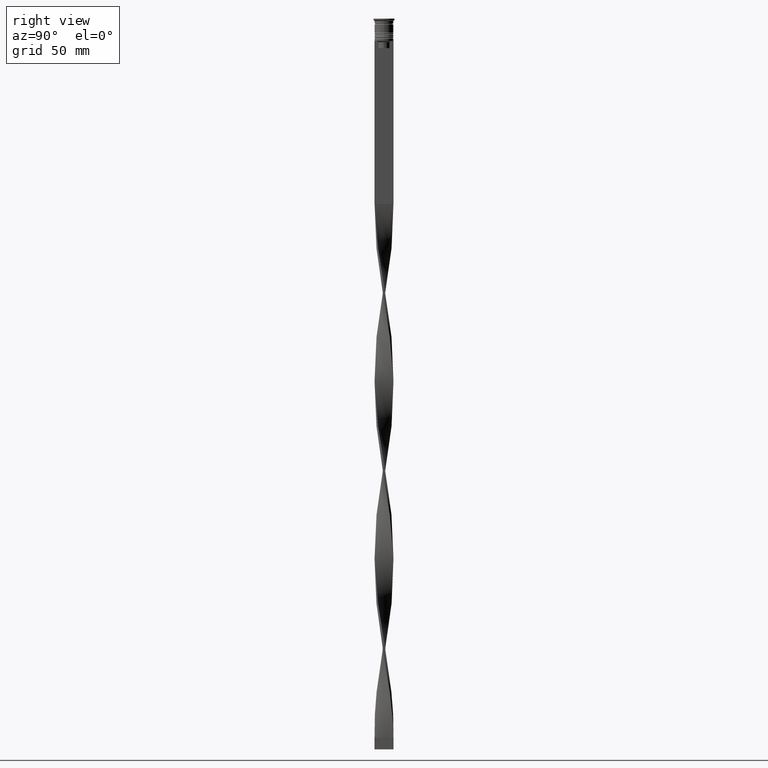
[diagram: clean part render]
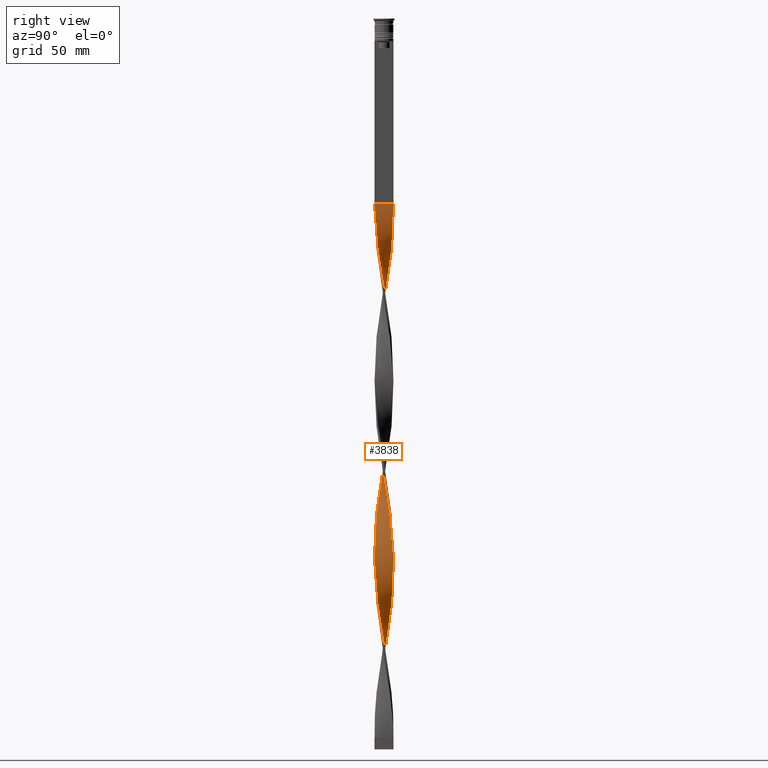
[diagram: same view with one face highlighted and labeled with its STEP entity id]
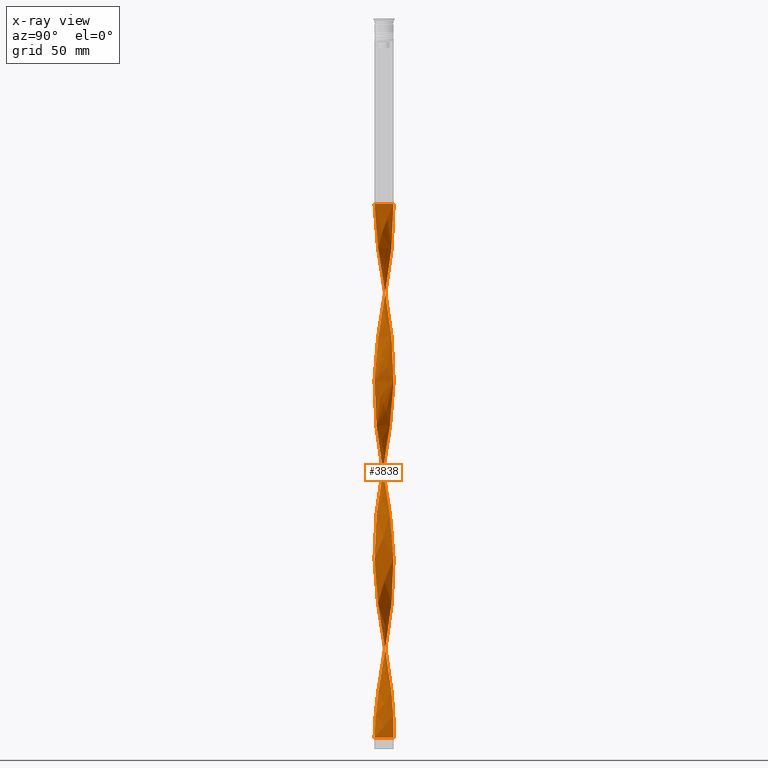
[diagram: x-ray of the same camera — body ghosted, the highlighted face saturated]
A machine part, right view. The second image highlights one B-rep face of the part: STEP entity #3838.
The next image is the same camera in x-ray: the body ghosted, the highlighted face saturated — about 0% of this face is hidden behind the body in this view.
In plain terms, the highlighted face is a freeform B-spline surface patch.
Its self-contained STEP definition (entity closure, byte-faithful):
#13 = CARTESIAN_POINT ( 'NONE',  ( 3.291162296146090682, 2.351558211267345211, -278.7280701754385746 ) ) ;
#29 = B_SPLINE_CURVE_WITH_KNOTS ( 'NONE', 3,
 ( #3873, #1362, #968, #350 ),
 .UNSPECIFIED., .F., .F.,
 ( 4, 4 ),
 ( 0.000000000000000000, 1.000000000000000000 ),
 .UNSPECIFIED. ) ;
#34 = CARTESIAN_POINT ( 'NONE',  ( -3.945048299290513150, -0.8286096283926643880, -193.4824561403508767 ) ) ;
#57 = CARTESIAN_POINT ( 'NONE',  ( -3.768740862115095513, 1.469070316484698990, -179.6052631578947398 ) ) ;
#77 = CARTESIAN_POINT ( 'NONE',  ( 3.876387747932443784, -1.155505650454258459, -187.5350877192982750 ) ) ;
#84 = CARTESIAN_POINT ( 'NONE',  ( 1.775272850193347685, 3.634553836156354745, -290.6228070175438347 ) ) ;
#88 = CARTESIAN_POINT ( 'NONE',  ( -4.013708850648581183, -0.5017136063310719818, -191.4999999999999716 ) ) ;
#94 = LINE ( 'NONE', #3517, #1070 ) ;
#95 = CARTESIAN_POINT ( 'NONE',  ( -4.027627644762845627, 0.1679748646140058199, -118.1491228070175481 ) ) ;
#97 = CARTESIAN_POINT ( 'NONE',  ( -2.062280596060474647, 3.463668393930408484, -94.35964912280701355 ) ) ;
#106 = CARTESIAN_POINT ( 'NONE',  ( -2.604254856879658409, -3.076988241839528015, -209.3421052631578902 ) ) ;
#115 =( BOUNDED_CURVE ( )  B_SPLINE_CURVE ( 2, ( #1717, #1119, #477, #2079, #3308, #2064, #2675, #2000, #3266, #2951, #1737, #2696, #3970, #2370, #1754, #492, #210, #3342, #3325, #1142, #3890, #1691, #2391, #3035, #1062, #3984, #1822, #2735, #549, #1791, #2408, #1460, #1231, #3130, #1212, #3069, #588, #3420, #2717, #3714, #864, #2092, #3442, #1538, #269, #3671, #1157, #605, #4022, #2449, #227, #1866, #1519, #3400, #1494, #905, #3733, #1849, #1173, #565, #2423, #3054, #2800, #246, #2178, #2752, #841, #3090, #3114, #2114, #1194, #4060, #3363, #2132, #3998, #2489, #885, #3752, #3693, #2781, #3381, #1805, #4041, #288, #532, #1477, #927, #2470, #2151, #2911, #3796, #692, #385, #1973, #1578, #965, #3174, #1930, #4079, #344, #3217, #13, #2216, #1887, #3148, #2840, #1639, #84, #2243, #2546, #1016, #643, #2820, #713, #3480 ),
 .UNSPECIFIED., .F., .T. ) 
 B_SPLINE_CURVE_WITH_KNOTS ( ( 3, 2, 2, 2, 2, 2, 2, 2, 2, 2, 2, 2, 2, 2, 2, 2, 2, 2, 2, 2, 2, 2, 2, 2, 2, 2, 2, 2, 2, 2, 2, 2, 2, 2, 2, 2, 2, 2, 2, 2, 2, 2, 2, 2, 2, 2, 2, 2, 2, 2, 2, 2, 2, 2, 2, 2, 2, 3 ),
 ( 0.000000000000000000, 0.01315789473684210453, 0.02631578947368420907, 0.03947368421052631360, 0.05263157894736841813, 0.06578947368421052266, 0.07894736842105262720, 0.09210526315789473173, 0.1052631578947368363, 0.1184210526315789408, 0.1315789473684210453, 0.1447368421052631637, 0.1578947368421052544, 0.1710526315789473728, 0.1842105263157894635, 0.1973684210526315541, 0.2105263157894736725, 0.2236842105263157909, 0.2368421052631578816, 0.2500000000000000000, 0.2631578947368420907, 0.2763157894736842368, 0.2894736842105263275, 0.3026315789473684181, 0.3157894736842105088, 0.3289473684210526550, 0.3421052631578947456, 0.3552631578947368918, 0.3684210526315789269, 0.3815789473684210731, 0.3947368421052631082, 0.4078947368421052544, 0.4210526315789473450, 0.4342105263157895467, 0.4473684210526315819, 0.4605263157894736725, 0.4736842105263157632, 0.4868421052631579093, 0.5000000000000000000, 0.5131578947368421462, 0.5263157894736841813, 0.5394736842105263275, 0.5526315789473684736, 0.5657894736842105088, 0.5789473684210526550, 0.5921052631578946901, 0.6052631578947368363, 0.6184210526315789824, 0.6315789473684210176, 0.6447368421052631637, 0.6578947368421053099, 0.6710526315789473450, 0.6842105263157894912, 0.6973684210526315264, 0.7105263157894737835, 0.7236842105263158187, 0.7368421052631578538, 0.7500000000000000000 ),
 .UNSPECIFIED. ) 
 CURVE ( )  GEOMETRIC_REPRESENTATION_ITEM ( )  RATIONAL_B_SPLINE_CURVE ( ( 1.000000000000000000, 0.9965844930066698470, 1.000000000000000000, 0.9965844930066698470, 1.000000000000000000, 0.9965844930066698470, 1.000000000000000000, 0.9965844930066698470, 1.000000000000000000, 0.9965844930066698470, 1.000000000000000000, 0.9965844930066698470, 1.000000000000000000, 0.9965844930066698470, 1.000000000000000000, 0.9965844930066698470, 1.000000000000000000, 0.9965844930066698470, 1.000000000000000000, 0.9965844930066698470, 1.000000000000000000, 0.9965844930066698470, 1.000000000000000000, 0.9965844930066698470, 1.000000000000000000, 0.9965844930066698470, 1.000000000000000000, 0.9965844930066698470, 1.000000000000000000, 0.9965844930066698470, 1.000000000000000000, 0.9965844930066698470, 1.000000000000000000, 0.9965844930066698470, 1.000000000000000000, 0.9965844930066698470, 1.000000000000000000, 0.9965844930066698470, 1.000000000000000000, 0.9965844930066698470, 1.000000000000000000, 0.9965844930066698470, 1.000000000000000000, 0.9965844930066698470, 1.000000000000000000, 0.9965844930066698470, 1.000000000000000000, 0.9965844930066698470, 1.000000000000000000, 0.9965844930066698470, 1.000000000000000000, 0.9965844930066698470, 1.000000000000000000, 0.9965844930066698470, 1.000000000000000000, 0.9965844930066698470, 1.000000000000000000, 0.9965844930066698470, 1.000000000000000000, 0.9965844930066698470, 1.000000000000000000, 0.9965844930066698470, 1.000000000000000000, 0.9965844930066698470, 1.000000000000000000, 0.9965844930066698470, 1.000000000000000000, 0.9965844930066698470, 1.000000000000000000, 0.9965844930066698470, 1.000000000000000000, 0.9965844930066698470, 1.000000000000000000, 0.9965844930066698470, 1.000000000000000000, 0.9965844930066698470, 1.000000000000000000, 0.9965844930066698470, 1.000000000000000000, 0.9965844930066698470, 1.000000000000000000, 0.9965844930066698470, 1.000000000000000000, 0.9965844930066698470, 1.000000000000000000, 0.9965844930066698470, 1.000000000000000000, 0.9965844930066698470, 1.000000000000000000, 0.9965844930066698470, 1.000000000000000000, 0.9965844930066698470, 1.000000000000000000, 0.9965844930066698470, 1.000000000000000000, 0.9965844930066698470, 1.000000000000000000, 0.9965844930066698470, 1.000000000000000000, 0.9965844930066698470, 1.000000000000000000, 0.9965844930066698470, 1.000000000000000000, 0.9965844930066698470, 1.000000000000000000, 0.9965844930066698470, 1.000000000000000000, 0.9965844930066698470, 1.000000000000000000, 0.9965844930066698470, 1.000000000000000000, 0.9965844930066698470, 1.000000000000000000, 0.9965844930066698470, 1.000000000000000000 ) ) 
 REPRESENTATION_ITEM ( '' )  );
#117 = CARTESIAN_POINT ( 'NONE',  ( 3.959141175778333022, 0.8287197540840007814, -199.4298245614035068 ) ) ;
#128 = CARTESIAN_POINT ( 'NONE',  ( 4.000343807327721102, -0.4972418155935317552, -260.8859649122807127 ) ) ;
#140 = CARTESIAN_POINT ( 'NONE',  ( 3.863941018946714490, 1.148895035284349442, -201.4122807017543835 ) ) ;
#144 = CARTESIAN_POINT ( 'NONE',  ( -1.464052696545049548, 3.755868701344493132, -90.39473684210526017 ) ) ;
#152 = CARTESIAN_POINT ( 'NONE',  ( 0.8258892559684172241, 3.945618701404880024, -296.5701754385964932 ) ) ;
#162 = CARTESIAN_POINT ( 'NONE',  ( -0.1685505501969342679, -4.041431181225382474, -155.8157894736842195 ) ) ;
#164 = CARTESIAN_POINT ( 'NONE',  ( -1.771706497669051972, -3.620919232200196625, -145.9035087719298076 ) ) ;
#169 = CARTESIAN_POINT ( 'NONE',  ( 3.087533734903234350, -2.613180192100606813, -247.0087719298245190 ) ) ;
#178 = CARTESIAN_POINT ( 'NONE',  ( -2.604254856879656188, 3.076988241839530236, -248.9912280701754241 ) ) ;
#179 = CARTESIAN_POINT ( 'NONE',  ( -0.4989459690400814273, 4.014053836277128973, -84.44736842105264429 ) ) ;
#196 = CARTESIAN_POINT ( 'NONE',  ( -3.959141175778332133, -0.8287197540840011145, -274.7631578947368780 ) ) ;
#199 = CARTESIAN_POINT ( 'NONE',  ( 3.959141175778333022, 0.8287197540840007814, -199.4298245614035068 ) ) ;
#210 = CARTESIAN_POINT ( 'NONE',  ( 4.000343807327721102, -0.4972418155935317552, -110.2192982456140413 ) ) ;
#217 = CARTESIAN_POINT ( 'NONE',  ( 1.471668575845526350, -3.767727018166428632, -84.44736842105264429 ) ) ;
#219 = CARTESIAN_POINT ( 'NONE',  ( -1.152832542896751189, 3.877183566532631520, -239.0789473684210407 ) ) ;
#227 = CARTESIAN_POINT ( 'NONE',  ( -3.622139992111327533, 1.769209393358443627, -177.6228070175438347 ) ) ;
#234 = CARTESIAN_POINT ( 'NONE',  ( 0.1685505501969329079, 4.041431181225382474, -231.1491228070175623 ) ) ;
#236 = CARTESIAN_POINT ( 'NONE',  ( 3.863941018946714490, 1.148895035284349442, -201.4122807017543835 ) ) ;
#246 = CARTESIAN_POINT ( 'NONE',  ( -3.291162296146092014, -2.351558211267342990, -203.3947368421052602 ) ) ;
#252 = CARTESIAN_POINT ( 'NONE',  ( -4.013708850648581183, 0.5017136063310728700, -266.8333333333333712 ) ) ;
#255 = CARTESIAN_POINT ( 'NONE',  ( 0.8314494498030690073, 3.958568818774615750, -227.1842105263158089 ) ) ;
#269 = CARTESIAN_POINT ( 'NONE',  ( -2.343526447751538289, 3.279921308307419903, -165.7280701754386030 ) ) ;
#278 = CARTESIAN_POINT ( 'NONE',  ( 0.4989459690400829261, 4.014053836277128973, -147.8859649122807127 ) ) ;
#280 = CARTESIAN_POINT ( 'NONE',  ( -4.041546438877109182, -0.1657638771030611746, -270.7982456140350678 ) ) ;
#288 = CARTESIAN_POINT ( 'NONE',  ( 2.615308476010500982, -3.085731170380873412, -243.0438596491228509 ) ) ;
#344 = CARTESIAN_POINT ( 'NONE',  ( 3.633328892441399116, 1.777778512611467576, -274.7631578947368780 ) ) ;
#349 = CARTESIAN_POINT ( 'NONE',  ( 3.633328892441398672, 1.777778512611467576, -124.0964912280701640 ) ) ;
#350 = CARTESIAN_POINT ( 'NONE',  ( -0.4999999999999994449, 4.000000000000000000, -304.5000000000000000 ) ) ;
#368 = CARTESIAN_POINT ( 'NONE',  ( -2.071744419492574707, 3.474111446233965950, -163.7456140350876979 ) ) ;
#379 = CARTESIAN_POINT ( 'NONE',  ( -3.281536428505397396, -2.341264331166397206, -134.0087719298245759 ) ) ;
#385 = CARTESIAN_POINT ( 'NONE',  ( 4.000343807327721102, -0.4972418155935317552, -260.8859649122807127 ) ) ;
#390 = CARTESIAN_POINT ( 'NONE',  ( 0.8314494498030671199, -3.958568818774615750, -231.1491228070175623 ) ) ;
#409 = CARTESIAN_POINT ( 'NONE',  ( -1.771706497669051972, -3.620919232200196625, -145.9035087719298076 ) ) ;
#416 = CARTESIAN_POINT ( 'NONE',  ( 0.1651977094215750508, 4.027742508751256167, -149.8684210526315894 ) ) ;
#425 = CARTESIAN_POINT ( 'NONE',  ( -2.062280596060474647, 3.463668393930408484, -94.35964912280701355 ) ) ;
#434 = CARTESIAN_POINT ( 'NONE',  ( 0.5000000000000000000, 4.000000000000000000, -78.50000000000000000 ) ) ;
#437 = CARTESIAN_POINT ( 'NONE',  ( 3.633328892441398672, 1.777778512611467576, -274.7631578947368780 ) ) ;
#445 = CARTESIAN_POINT ( 'NONE',  ( 2.615308476010501870, 3.085731170380873412, -215.2894736842105488 ) ) ;
#447 = CARTESIAN_POINT ( 'NONE',  ( -2.615308476010500982, -3.085731170380873412, -139.9561403508772059 ) ) ;
#463 = CARTESIAN_POINT ( 'NONE',  ( -2.615308476010501426, -3.085731170380873412, -139.9561403508772059 ) ) ;
#467 = CARTESIAN_POINT ( 'NONE',  ( -2.343526447751539177, -3.279921308307419459, -141.9385964912280826 ) ) ;
#473 = VERTEX_POINT ( 'NONE', #1696 ) ;
#474 = CARTESIAN_POINT ( 'NONE',  ( 0.4989459690400829261, 4.014053836277128973, -298.5526315789473983 ) ) ;
#477 = CARTESIAN_POINT ( 'NONE',  ( 1.151559012824296735, -3.863147918470522413, -82.46491228070175339 ) ) ;
#482 = CARTESIAN_POINT ( 'NONE',  ( -0.5000000000000005551, -4.000000000000000000, -304.5000000000000000 ) ) ;
#485 = CARTESIAN_POINT ( 'NONE',  ( -0.4989459690400814829, 4.014053836277128973, -84.44736842105263008 ) ) ;
#491 = CARTESIAN_POINT ( 'NONE',  ( 1.464052696545050436, 3.755868701344492688, -292.6052631578947398 ) ) ;
#492 = CARTESIAN_POINT ( 'NONE',  ( 3.959141175778332133, -0.8287197540840016696, -108.2368421052631646 ) ) ;
#499 = CARTESIAN_POINT ( 'NONE',  ( 1.151559012824296735, -3.863147918470522413, -82.46491228070175339 ) ) ;
#502 = CARTESIAN_POINT ( 'NONE',  ( -0.1651977094215744957, 4.027742508751256167, -233.1315789473684106 ) ) ;
#516 = CARTESIAN_POINT ( 'NONE',  ( -4.027627644762845627, 0.1679748646140058199, -268.8157894736842195 ) ) ;
#520 = CARTESIAN_POINT ( 'NONE',  ( 2.349288341927599610, -3.292782951704462668, -171.6754385964912331 ) ) ;
#530 =( BOUNDED_CURVE ( )  B_SPLINE_CURVE ( 2, ( #2943, #2344, #2964, #485, #1053, #3297, #144, #3544, #97, #1352, #3905, #3862, #1033, #2649, #2990, #2281, #2606, #3881, #3924, #1397, #2030, #1729, #1373, #1080, #709, #1098, #3591, #1969, #760, #3277, #3237, #447, #467, #3609, #164, #1204, #819, #4008, #3977, #2745, #3992, #874, #1469, #540, #1132, #853, #1150, #520, #1784, #2122, #557, #3389, #1813, #836, #1184, #1797, #2142, #2400, #3080, #3062, #2382, #199, #236, #2439, #1166, #3957, #1487, #576, #1836, #2417, #3350, #2073, #3648, #3666, #3335, #255, #3705, #3044, #502, #1507, #2086, #219, #2725, #2770, #3682, #2107, #1451, #3372, #1764, #3025, #4033, #2460, #3723, #894, #2708, #3104, #3410, #280, #2684, #1528, #3516, #1920, #1238, #680, #659, #2791, #2810, #4067, #3183, #2188, #631, #1546, #3472, #2500, #3121 ),
 .UNSPECIFIED., .F., .T. ) 
 B_SPLINE_CURVE_WITH_KNOTS ( ( 3, 2, 2, 2, 2, 2, 2, 2, 2, 2, 2, 2, 2, 2, 2, 2, 2, 2, 2, 2, 2, 2, 2, 2, 2, 2, 2, 2, 2, 2, 2, 2, 2, 2, 2, 2, 2, 2, 2, 2, 2, 2, 2, 2, 2, 2, 2, 2, 2, 2, 2, 2, 2, 2, 2, 2, 2, 3 ),
 ( 0.000000000000000000, 0.01315789473684210453, 0.02631578947368420907, 0.03947368421052631360, 0.05263157894736841813, 0.06578947368421052266, 0.07894736842105262720, 0.09210526315789473173, 0.1052631578947368363, 0.1184210526315789408, 0.1315789473684210453, 0.1447368421052631637, 0.1578947368421052544, 0.1710526315789473728, 0.1842105263157894635, 0.1973684210526315541, 0.2105263157894736725, 0.2236842105263157909, 0.2368421052631578816, 0.2500000000000000000, 0.2631578947368420907, 0.2763157894736842368, 0.2894736842105263275, 0.3026315789473684181, 0.3157894736842105088, 0.3289473684210526550, 0.3421052631578947456, 0.3552631578947368918, 0.3684210526315789269, 0.3815789473684210731, 0.3947368421052631082, 0.4078947368421052544, 0.4210526315789473450, 0.4342105263157895467, 0.4473684210526315819, 0.4605263157894736725, 0.4736842105263157632, 0.4868421052631579093, 0.5000000000000000000, 0.5131578947368421462, 0.5263157894736841813, 0.5394736842105263275, 0.5526315789473684736, 0.5657894736842105088, 0.5789473684210526550, 0.5921052631578946901, 0.6052631578947368363, 0.6184210526315789824, 0.6315789473684210176, 0.6447368421052631637, 0.6578947368421053099, 0.6710526315789473450, 0.6842105263157894912, 0.6973684210526315264, 0.7105263157894737835, 0.7236842105263158187, 0.7368421052631578538, 0.7500000000000000000 ),
 .UNSPECIFIED. ) 
 CURVE ( )  GEOMETRIC_REPRESENTATION_ITEM ( )  RATIONAL_B_SPLINE_CURVE ( ( 1.000000000000000000, 0.9965844930066698470, 1.000000000000000000, 0.9965844930066698470, 1.000000000000000000, 0.9965844930066698470, 1.000000000000000000, 0.9965844930066698470, 1.000000000000000000, 0.9965844930066698470, 1.000000000000000000, 0.9965844930066698470, 1.000000000000000000, 0.9965844930066698470, 1.000000000000000000, 0.9965844930066698470, 1.000000000000000000, 0.9965844930066698470, 1.000000000000000000, 0.9965844930066698470, 1.000000000000000000, 0.9965844930066698470, 1.000000000000000000, 0.9965844930066698470, 1.000000000000000000, 0.9965844930066698470, 1.000000000000000000, 0.9965844930066698470, 1.000000000000000000, 0.9965844930066698470, 1.000000000000000000, 0.9965844930066698470, 1.000000000000000000, 0.9965844930066698470, 1.000000000000000000, 0.9965844930066698470, 1.000000000000000000, 0.9965844930066698470, 1.000000000000000000, 0.9965844930066698470, 1.000000000000000000, 0.9965844930066698470, 1.000000000000000000, 0.9965844930066698470, 1.000000000000000000, 0.9965844930066698470, 1.000000000000000000, 0.9965844930066698470, 1.000000000000000000, 0.9965844930066698470, 1.000000000000000000, 0.9965844930066698470, 1.000000000000000000, 0.9965844930066698470, 1.000000000000000000, 0.9965844930066698470, 1.000000000000000000, 0.9965844930066698470, 1.000000000000000000, 0.9965844930066698470, 1.000000000000000000, 0.9965844930066698470, 1.000000000000000000, 0.9965844930066698470, 1.000000000000000000, 0.9965844930066698470, 1.000000000000000000, 0.9965844930066698470, 1.000000000000000000, 0.9965844930066698470, 1.000000000000000000, 0.9965844930066698470, 1.000000000000000000, 0.9965844930066698470, 1.000000000000000000, 0.9965844930066698470, 1.000000000000000000, 0.9965844930066698470, 1.000000000000000000, 0.9965844930066698470, 1.000000000000000000, 0.9965844930066698470, 1.000000000000000000, 0.9965844930066698470, 1.000000000000000000, 0.9965844930066698470, 1.000000000000000000, 0.9965844930066698470, 1.000000000000000000, 0.9965844930066698470, 1.000000000000000000, 0.9965844930066698470, 1.000000000000000000, 0.9965844930066698470, 1.000000000000000000, 0.9965844930066698470, 1.000000000000000000, 0.9965844930066698470, 1.000000000000000000, 0.9965844930066698470, 1.000000000000000000, 0.9965844930066698470, 1.000000000000000000, 0.9965844930066698470, 1.000000000000000000, 0.9965844930066698470, 1.000000000000000000, 0.9965844930066698470, 1.000000000000000000, 0.9965844930066698470, 1.000000000000000000, 0.9965844930066698470, 1.000000000000000000, 0.9965844930066698470, 1.000000000000000000 ) ) 
 REPRESENTATION_ITEM ( '' )  );
#532 = CARTESIAN_POINT ( 'NONE',  ( 2.851421105456868332, -2.849455681240740557, -245.0263157894736992 ) ) ;
#538 = CARTESIAN_POINT ( 'NONE',  ( 3.863941018946714490, -1.148895035284349442, -106.2543859649122879 ) ) ;
#540 = CARTESIAN_POINT ( 'NONE',  ( 1.152832542896750301, -3.877183566532631964, -163.7456140350876979 ) ) ;
#549 = CARTESIAN_POINT ( 'NONE',  ( 2.604254856879656632, 3.076988241839529348, -134.0087719298245759 ) ) ;
#555 = CARTESIAN_POINT ( 'NONE',  ( 3.087533734903234350, -2.613180192100606813, -96.34210526315787604 ) ) ;
#557 = CARTESIAN_POINT ( 'NONE',  ( 3.075191833988900836, -2.606375871620972173, -177.6228070175438347 ) ) ;
#565 = CARTESIAN_POINT ( 'NONE',  ( -3.876387747932445560, -1.155505650454253352, -195.4649122807017534 ) ) ;
#573 = CARTESIAN_POINT ( 'NONE',  ( -1.152832542896753409, -3.877183566532631520, -219.2543859649122737 ) ) ;
#576 = CARTESIAN_POINT ( 'NONE',  ( 3.087533734903235683, 2.613180192100605037, -211.3245614035087669 ) ) ;
#588 = CARTESIAN_POINT ( 'NONE',  ( 0.1651977094215750508, 4.027742508751256167, -149.8684210526315894 ) ) ;
#595 = CARTESIAN_POINT ( 'NONE',  ( -4.041546438877107406, 0.1657638771030640612, -187.5350877192982750 ) ) ;
#605 = CARTESIAN_POINT ( 'NONE',  ( -3.087533734903234350, 2.613180192100608146, -171.6754385964912331 ) ) ;
#631 = CARTESIAN_POINT ( 'NONE',  ( -1.771706497669051972, -3.620919232200196625, -296.5701754385964932 ) ) ;
#643 = CARTESIAN_POINT ( 'NONE',  ( 0.4989459690400829817, 4.014053836277128973, -298.5526315789473983 ) ) ;
#659 = CARTESIAN_POINT ( 'NONE',  ( -3.281536428505397396, -2.341264331166397206, -284.6754385964912331 ) ) ;
#672 = CARTESIAN_POINT ( 'NONE',  ( 1.464052696545050436, 3.755868701344492688, -141.9385964912280826 ) ) ;
#680 = CARTESIAN_POINT ( 'NONE',  ( -3.475539122107559553, -2.069348470232189374, -282.6929824561403848 ) ) ;
#685 = CARTESIAN_POINT ( 'NONE',  ( 2.062280596060474647, -3.463668393930408929, -169.6929824561403279 ) ) ;
#692 = CARTESIAN_POINT ( 'NONE',  ( 3.959141175778332133, -0.8287197540840016696, -258.9035087719298645 ) ) ;
#696 = CARTESIAN_POINT ( 'NONE',  ( -0.8258892559684176682, -3.945618701404880024, -221.2368421052631788 ) ) ;
#707 = CARTESIAN_POINT ( 'NONE',  ( -3.876387747932444228, 1.155505650454256239, -112.2017543859649180 ) ) ;
#709 = CARTESIAN_POINT ( 'NONE',  ( -3.863941018946714934, -1.148895035284348332, -126.0789473684210691 ) ) ;
#713 = CARTESIAN_POINT ( 'NONE',  ( -0.1685505501969314646, 4.041431181225382474, -302.5175438596491517 ) ) ;
#716 = ORIENTED_EDGE ( 'NONE', *, *, #2342, .F. ) ;
#718 = CARTESIAN_POINT ( 'NONE',  ( -0.4989459690400818159, -4.014053836277128973, -223.2192982456140271 ) ) ;
#737 = CARTESIAN_POINT ( 'NONE',  ( -3.087533734903234350, -2.613180192100606813, -135.9912280701753957 ) ) ;
#744 = CARTESIAN_POINT ( 'NONE',  ( 3.462245594293745565, 2.064668361939405727, -276.7456140350877263 ) ) ;
#757 = CARTESIAN_POINT ( 'NONE',  ( 3.462245594293744677, -2.064668361939407948, -181.5877192982456449 ) ) ;
#760 = CARTESIAN_POINT ( 'NONE',  ( -3.281536428505397396, -2.341264331166397206, -134.0087719298245759 ) ) ;
#768 = CARTESIAN_POINT ( 'NONE',  ( 3.959141175778332133, -0.8287197540840015586, -258.9035087719299213 ) ) ;
#776 = CARTESIAN_POINT ( 'NONE',  ( -4.000343807327721102, -0.4972418155935313666, -122.1140350877193015 ) ) ;
#784 = CARTESIAN_POINT ( 'NONE',  ( -0.1685505501969314646, 4.041431181225382474, -302.5175438596491517 ) ) ;
#795 = CARTESIAN_POINT ( 'NONE',  ( 3.768740862115096402, -1.469070316484696770, -104.2719298245614112 ) ) ;
#797 = FACE_OUTER_BOUND ( 'NONE', #3658, .T. ) ;
#809 = CARTESIAN_POINT ( 'NONE',  ( 2.349288341927600499, 3.292782951704461780, -286.6578947368421382 ) ) ;
#816 = CARTESIAN_POINT ( 'NONE',  ( -1.464052696545049548, 3.755868701344493132, -241.0614035087719174 ) ) ;
#819 = CARTESIAN_POINT ( 'NONE',  ( -1.151559012824297401, -3.863147918470522413, -149.8684210526315894 ) ) ;
#834 = CARTESIAN_POINT ( 'NONE',  ( -3.622139992111327977, -1.769209393358442517, -280.7105263157894797 ) ) ;
#836 = CARTESIAN_POINT ( 'NONE',  ( 3.633328892441399116, -1.777778512611468464, -183.5701754385964648 ) ) ;
#841 = CARTESIAN_POINT ( 'NONE',  ( -2.604254856879658409, -3.076988241839528015, -209.3421052631578902 ) ) ;
#850 = CARTESIAN_POINT ( 'NONE',  ( -4.041546438877108294, -0.1657638771030611746, -270.7982456140351246 ) ) ;
#853 = CARTESIAN_POINT ( 'NONE',  ( 1.775272850193346796, -3.634553836156355633, -167.7105263157894797 ) ) ;
#864 = CARTESIAN_POINT ( 'NONE',  ( -1.151559012824296291, 3.863147918470523301, -157.7982456140350962 ) ) ;
#871 = CARTESIAN_POINT ( 'NONE',  ( -2.851421105456868776, -2.849455681240740113, -288.6403508771929864 ) ) ;
#874 = CARTESIAN_POINT ( 'NONE',  ( 0.4989459690400802616, -4.014053836277129861, -159.7807017543859729 ) ) ;
#885 = CARTESIAN_POINT ( 'NONE',  ( 0.5000000000000000000, -4.000000000000000000, -229.1666666666666856 ) ) ;
#891 = CARTESIAN_POINT ( 'NONE',  ( 1.151559012824296735, -3.863147918470522413, -233.1315789473684106 ) ) ;
#894 = CARTESIAN_POINT ( 'NONE',  ( -3.876387747932444228, 1.155505650454256017, -262.8684210526315042 ) ) ;
#905 = CARTESIAN_POINT ( 'NONE',  ( -4.041546438877108294, 0.1657638771030640612, -187.5350877192982466 ) ) ;
#910 = CARTESIAN_POINT ( 'NONE',  ( -2.349288341927602719, -3.292782951704460892, -211.3245614035087385 ) ) ;
#927 = CARTESIAN_POINT ( 'NONE',  ( 3.281536428505396952, -2.341264331166398982, -248.9912280701754241 ) ) ;
#965 = CARTESIAN_POINT ( 'NONE',  ( 4.013708850648581183, 0.5017136063310724259, -266.8333333333333712 ) ) ;
#968 = CARTESIAN_POINT ( 'NONE',  ( -0.4999999999999997780, 1.333333333333333481, -304.5000000000000000 ) ) ;
#995 = CARTESIAN_POINT ( 'NONE',  ( 2.604254856879656632, 3.076988241839529348, -134.0087719298245759 ) ) ;
#1006 = DIRECTION ( 'NONE',  ( 0.000000000000000000, 1.000000000000000000, 0.000000000000000000 ) ) ;
#1016 = CARTESIAN_POINT ( 'NONE',  ( 0.8258892559684172241, 3.945618701404880024, -296.5701754385964932 ) ) ;
#1020 = CARTESIAN_POINT ( 'NONE',  ( -3.633328892441399116, -1.777778512611467132, -199.4298245614035068 ) ) ;
#1031 = CARTESIAN_POINT ( 'NONE',  ( 3.291162296146088906, -2.351558211267347431, -179.6052631578947398 ) ) ;
#1033 = CARTESIAN_POINT ( 'NONE',  ( -3.075191833988900836, 2.606375871620972173, -102.2894736842105203 ) ) ;
#1043 = CARTESIAN_POINT ( 'NONE',  ( -3.462245594293745121, -2.064668361939406616, -201.4122807017543835 ) ) ;
#1051 = CARTESIAN_POINT ( 'NONE',  ( -3.633328892441398672, 1.777778512611468020, -108.2368421052631504 ) ) ;
#1053 = CARTESIAN_POINT ( 'NONE',  ( -0.8258892559684165580, 3.945618701404880024, -86.42982456140350678 ) ) ;
#1060 = CARTESIAN_POINT ( 'NONE',  ( 2.604254856879656632, 3.076988241839529348, -284.6754385964912331 ) ) ;
#1062 = CARTESIAN_POINT ( 'NONE',  ( 3.462245594293745565, 2.064668361939405727, -126.0789473684210691 ) ) ;
#1070 = VECTOR ( 'NONE', #1006, 1000.000000000000000 ) ;
#1078 = CARTESIAN_POINT ( 'NONE',  ( -3.945048299290513150, 0.8286096283926643880, -114.1842105263157947 ) ) ;
#1080 = CARTESIAN_POINT ( 'NONE',  ( -3.959141175778332133, -0.8287197540840012255, -124.0964912280701640 ) ) ;
#1096 = CARTESIAN_POINT ( 'NONE',  ( -4.041546438877108294, -0.1657638771030611746, -120.1315789473683964 ) ) ;
#1098 = CARTESIAN_POINT ( 'NONE',  ( -3.768740862115096402, -1.469070316484696548, -128.0614035087719458 ) ) ;
#1108 = CARTESIAN_POINT ( 'NONE',  ( 3.633328892441398672, -1.777778512611468464, -183.5701754385964364 ) ) ;
#1119 = CARTESIAN_POINT ( 'NONE',  ( 0.8314494498030671199, -3.958568818774615750, -80.48245614035087669 ) ) ;
#1128 = CARTESIAN_POINT ( 'NONE',  ( 4.013708850648581183, 0.5017136063310724259, -116.1666666666666714 ) ) ;
#1132 = CARTESIAN_POINT ( 'NONE',  ( 1.464052696545049548, -3.755868701344493132, -165.7280701754386030 ) ) ;
#1142 = CARTESIAN_POINT ( 'NONE',  ( 4.013708850648581183, 0.5017136063310724259, -116.1666666666666714 ) ) ;
#1148 = CARTESIAN_POINT ( 'NONE',  ( -2.343526447751539177, -3.279921308307419459, -292.6052631578947398 ) ) ;
#1150 = CARTESIAN_POINT ( 'NONE',  ( 2.062280596060474647, -3.463668393930408929, -169.6929824561403279 ) ) ;
#1157 = CARTESIAN_POINT ( 'NONE',  ( -2.851421105456868332, 2.849455681240740557, -169.6929824561403279 ) ) ;
#1164 = CARTESIAN_POINT ( 'NONE',  ( 2.071744419492575595, -3.474111446233965506, -88.41228070175438347 ) ) ;
#1166 = CARTESIAN_POINT ( 'NONE',  ( 3.622139992111328866, 1.769209393358442073, -205.3771929824561653 ) ) ;
#1173 = CARTESIAN_POINT ( 'NONE',  ( -3.945048299290513150, -0.8286096283926643880, -193.4824561403508767 ) ) ;
#1179 = CARTESIAN_POINT ( 'NONE',  ( -3.291162296146090682, 2.351558211267345211, -254.9385964912280826 ) ) ;
#1184 = CARTESIAN_POINT ( 'NONE',  ( 3.754858320186921894, -1.466642081532861797, -185.5526315789473699 ) ) ;
#1194 = CARTESIAN_POINT ( 'NONE',  ( -1.464052696545052212, -3.755868701344492244, -217.2719298245613970 ) ) ;
#1200 = CARTESIAN_POINT ( 'NONE',  ( -3.945048299290513150, 0.8286096283926643880, -264.8508771929824661 ) ) ;
#1204 = CARTESIAN_POINT ( 'NONE',  ( -1.471668575845527682, -3.767727018166428188, -147.8859649122807127 ) ) ;
#1212 = CARTESIAN_POINT ( 'NONE',  ( 0.8258892559684172241, 3.945618701404880024, -145.9035087719298076 ) ) ;
#1220 = CARTESIAN_POINT ( 'NONE',  ( 2.859221371831710989, 2.861193531974598692, -132.0263157894736707 ) ) ;
#1231 = CARTESIAN_POINT ( 'NONE',  ( 1.464052696545050436, 3.755868701344492688, -141.9385964912280826 ) ) ;
#1238 = CARTESIAN_POINT ( 'NONE',  ( -3.622139992111327977, -1.769209393358442517, -280.7105263157894797 ) ) ;
#1289 = CARTESIAN_POINT ( 'NONE',  ( -1.775272850193348129, -3.634553836156354745, -215.2894736842105488 ) ) ;
#1316 = CARTESIAN_POINT ( 'NONE',  ( -0.4999999999999994449, 4.000000000000000000, -153.8333333333333144 ) ) ;
#1329 = CARTESIAN_POINT ( 'NONE',  ( 4.013708850648581183, -0.5017136063310734251, -191.4999999999999716 ) ) ;
#1340 = CARTESIAN_POINT ( 'NONE',  ( 3.876387747932445116, 1.155505650454255795, -120.1315789473683964 ) ) ;
#1350 = CARTESIAN_POINT ( 'NONE',  ( -3.768740862115096402, -1.469070316484696548, -128.0614035087719458 ) ) ;
#1352 = CARTESIAN_POINT ( 'NONE',  ( -2.349288341927600499, 3.292782951704461336, -96.34210526315787604 ) ) ;
#1355 = CARTESIAN_POINT ( 'NONE',  ( 0.5000000000000000000, -4.000000000000000000, -78.50000000000000000 ) ) ;
#1360 = CARTESIAN_POINT ( 'NONE',  ( 3.768740862115096402, -1.469070316484696770, -254.9385964912280826 ) ) ;
#1362 = CARTESIAN_POINT ( 'NONE',  ( -0.5000000000000002220, -1.333333333333333481, -304.5000000000000000 ) ) ;
#1371 = CARTESIAN_POINT ( 'NONE',  ( 3.768740862115096846, 1.469070316484694327, -203.3947368421052886 ) ) ;
#1373 = CARTESIAN_POINT ( 'NONE',  ( -4.000343807327721102, -0.4972418155935313666, -122.1140350877193015 ) ) ;
#1380 = CARTESIAN_POINT ( 'NONE',  ( 3.075191833988901280, 2.606375871620971285, -280.7105263157894797 ) ) ;
#1395 = CARTESIAN_POINT ( 'NONE',  ( 3.622139992111328866, 1.769209393358442073, -205.3771929824561653 ) ) ;
#1397 = CARTESIAN_POINT ( 'NONE',  ( -4.013708850648581183, 0.5017136063310728700, -116.1666666666666714 ) ) ;
#1402 = CARTESIAN_POINT ( 'NONE',  ( 2.062280596060475091, 3.463668393930408040, -288.6403508771929864 ) ) ;
#1412 = CARTESIAN_POINT ( 'NONE',  ( -2.343526447751539177, -3.279921308307419459, -141.9385964912280826 ) ) ;
#1419 = CARTESIAN_POINT ( 'NONE',  ( 4.013708850648581183, 0.5017136063310724259, -266.8333333333333712 ) ) ;
#1425 = CARTESIAN_POINT ( 'NONE',  ( 3.959141175778332133, -0.8287197540840015586, -108.2368421052631504 ) ) ;
#1426 = CARTESIAN_POINT ( 'NONE',  ( -0.8258892559684165580, 3.945618701404880024, -86.42982456140350678 ) ) ;
#1447 = CARTESIAN_POINT ( 'NONE',  ( 1.771706497669052194, 3.620919232200196181, -221.2368421052631788 ) ) ;
#1451 = CARTESIAN_POINT ( 'NONE',  ( -2.604254856879656188, 3.076988241839530236, -248.9912280701754241 ) ) ;
#1460 = CARTESIAN_POINT ( 'NONE',  ( 1.775272850193347685, 3.634553836156354745, -139.9561403508772059 ) ) ;
#1467 = CARTESIAN_POINT ( 'NONE',  ( -0.8258892559684165580, 3.945618701404880024, -237.0964912280701924 ) ) ;
#1469 = CARTESIAN_POINT ( 'NONE',  ( 0.8258892559684163359, -3.945618701404880913, -161.7631578947368212 ) ) ;
#1477 = CARTESIAN_POINT ( 'NONE',  ( 3.087533734903234350, -2.613180192100606813, -247.0087719298245474 ) ) ;
#1485 = CARTESIAN_POINT ( 'NONE',  ( 0.8314494498030688963, 3.958568818774615750, -227.1842105263158373 ) ) ;
#1487 = CARTESIAN_POINT ( 'NONE',  ( 3.281536428505399172, 2.341264331166395873, -209.3421052631578902 ) ) ;
#1494 = CARTESIAN_POINT ( 'NONE',  ( -4.000343807327721102, 0.4972418155935313666, -185.5526315789473699 ) ) ;
#1504 = CARTESIAN_POINT ( 'NONE',  ( 2.343526447751538733, -3.279921308307419903, -90.39473684210526017 ) ) ;
#1507 = CARTESIAN_POINT ( 'NONE',  ( -0.4989459690400814829, 4.014053836277128973, -235.1140350877193441 ) ) ;
#1519 = CARTESIAN_POINT ( 'NONE',  ( -3.863941018946714046, 1.148895035284350996, -181.5877192982456449 ) ) ;
#1525 = CARTESIAN_POINT ( 'NONE',  ( 1.771706497669051306, -3.620919232200196625, -237.0964912280701924 ) ) ;
#1528 = CARTESIAN_POINT ( 'NONE',  ( -3.959141175778332133, -0.8287197540840012255, -274.7631578947368780 ) ) ;
#1538 = CARTESIAN_POINT ( 'NONE',  ( -2.071744419492575151, 3.474111446233965950, -163.7456140350876979 ) ) ;
#1541 = CARTESIAN_POINT ( 'NONE',  ( 0.5000000000000000000, 4.000000000000000000, -78.50000000000000000 ) ) ;
#1546 = CARTESIAN_POINT ( 'NONE',  ( -1.471668575845527682, -3.767727018166428188, -298.5526315789473983 ) ) ;
#1578 = CARTESIAN_POINT ( 'NONE',  ( 4.027627644762845627, 0.1679748646140053203, -264.8508771929824661 ) ) ;
#1600 = CARTESIAN_POINT ( 'NONE',  ( -3.863941018946714046, 1.148895035284350996, -181.5877192982456449 ) ) ;
#1619 = CARTESIAN_POINT ( 'NONE',  ( -3.087533734903233906, 2.613180192100608146, -171.6754385964912046 ) ) ;
#1632 = CARTESIAN_POINT ( 'NONE',  ( 2.349288341927599610, -3.292782951704463112, -171.6754385964912046 ) ) ;
#1639 = CARTESIAN_POINT ( 'NONE',  ( 2.062280596060475091, 3.463668393930408040, -288.6403508771929864 ) ) ;
#1647 = CARTESIAN_POINT ( 'NONE',  ( 2.071744419492575595, -3.474111446233965506, -239.0789473684210407 ) ) ;
#1659 = CARTESIAN_POINT ( 'NONE',  ( -2.859221371831710989, 2.861193531974598692, -100.3070175438596294 ) ) ;
#1669 = CARTESIAN_POINT ( 'NONE',  ( -1.471668575845525240, 3.767727018166429076, -159.7807017543859729 ) ) ;
#1680 = CARTESIAN_POINT ( 'NONE',  ( -2.604254856879656188, 3.076988241839530236, -98.32456140350876694 ) ) ;
#1690 = CARTESIAN_POINT ( 'NONE',  ( 4.027627644762845627, 0.1679748646140053203, -264.8508771929824661 ) ) ;
#1691 = CARTESIAN_POINT ( 'NONE',  ( 3.876387747932445116, 1.155505650454255573, -120.1315789473684106 ) ) ;
#1696 = CARTESIAN_POINT ( 'NONE',  ( -0.5000000000000005551, -4.000000000000000000, -304.5000000000000000 ) ) ;
#1704 = CARTESIAN_POINT ( 'NONE',  ( 2.343526447751540953, 3.279921308307418126, -217.2719298245613970 ) ) ;
#1714 = CARTESIAN_POINT ( 'NONE',  ( 3.291162296146090682, 2.351558211267345211, -278.7280701754385177 ) ) ;
#1717 = CARTESIAN_POINT ( 'NONE',  ( 0.5000000000000000000, -4.000000000000000000, -78.50000000000000000 ) ) ;
#1727 = CARTESIAN_POINT ( 'NONE',  ( -3.754858320186921894, 1.466642081532862241, -110.2192982456140413 ) ) ;
#1729 = CARTESIAN_POINT ( 'NONE',  ( -4.041546438877109182, -0.1657638771030611746, -120.1315789473684106 ) ) ;
#1737 = CARTESIAN_POINT ( 'NONE',  ( 3.281536428505396952, -2.341264331166398982, -98.32456140350876694 ) ) ;
#1744 = CARTESIAN_POINT ( 'NONE',  ( 4.041546438877107406, -0.1657638771030618408, -112.2017543859649180 ) ) ;
#1753 = CARTESIAN_POINT ( 'NONE',  ( 3.622139992111327533, -1.769209393358443627, -252.9561403508772059 ) ) ;
#1754 = CARTESIAN_POINT ( 'NONE',  ( 3.863941018946714490, -1.148895035284349442, -106.2543859649122879 ) ) ;
#1755 = VERTEX_POINT ( 'NONE', #3298 ) ;
#1761 = CARTESIAN_POINT ( 'NONE',  ( -0.1651977094215744957, 4.027742508751256167, -233.1315789473684106 ) ) ;
#1764 = CARTESIAN_POINT ( 'NONE',  ( -3.075191833988900836, 2.606375871620972173, -252.9561403508772059 ) ) ;
#1770 = CARTESIAN_POINT ( 'NONE',  ( 3.754858320186921894, 1.466642081532861797, -272.7807017543859729 ) ) ;
#1780 = CARTESIAN_POINT ( 'NONE',  ( 0.8314494498030671199, -3.958568818774615750, -80.48245614035087669 ) ) ;
#1784 = CARTESIAN_POINT ( 'NONE',  ( 2.604254856879654412, -3.076988241839531568, -173.6578947368421098 ) ) ;
#1791 = CARTESIAN_POINT ( 'NONE',  ( 2.349288341927600499, 3.292782951704461336, -135.9912280701754241 ) ) ;
#1795 = CARTESIAN_POINT ( 'NONE',  ( 1.151559012824299399, 3.863147918470521969, -225.2017543859649038 ) ) ;
#1797 = CARTESIAN_POINT ( 'NONE',  ( 3.876387747932443784, -1.155505650454258459, -187.5350877192982466 ) ) ;
#1805 = CARTESIAN_POINT ( 'NONE',  ( 2.071744419492576039, -3.474111446233965506, -239.0789473684210407 ) ) ;
#1811 = CARTESIAN_POINT ( 'NONE',  ( 3.622139992111327533, -1.769209393358443627, -102.2894736842105203 ) ) ;
#1813 = CARTESIAN_POINT ( 'NONE',  ( 3.462245594293744677, -2.064668361939407948, -181.5877192982456449 ) ) ;
#1822 = CARTESIAN_POINT ( 'NONE',  ( 3.075191833988901280, 2.606375871620971285, -130.0438596491227941 ) ) ;
#1831 = CARTESIAN_POINT ( 'NONE',  ( 1.471668575845526350, -3.767727018166428632, -235.1140350877193157 ) ) ;
#1836 = CARTESIAN_POINT ( 'NONE',  ( 2.851421105456868776, 2.849455681240739668, -213.3070175438596721 ) ) ;
#1849 = CARTESIAN_POINT ( 'NONE',  ( -4.013708850648581183, -0.5017136063310718708, -191.4999999999999716 ) ) ;
#1861 = ORIENTED_EDGE ( 'NONE', *, *, #3606, .F. ) ;
#1866 = CARTESIAN_POINT ( 'NONE',  ( -3.768740862115095513, 1.469070316484699212, -179.6052631578947398 ) ) ;
#1887 = CARTESIAN_POINT ( 'NONE',  ( 2.859221371831710545, 2.861193531974598692, -282.6929824561403848 ) ) ;
#1913 = CARTESIAN_POINT ( 'NONE',  ( -3.291162296146092014, -2.351558211267342990, -203.3947368421052886 ) ) ;
#1920 = CARTESIAN_POINT ( 'NONE',  ( -3.768740862115096402, -1.469070316484696548, -278.7280701754385746 ) ) ;
#1930 = CARTESIAN_POINT ( 'NONE',  ( 3.876387747932445116, 1.155505650454255573, -270.7982456140350678 ) ) ;
#1935 = CARTESIAN_POINT ( 'NONE',  ( 3.075191833988901280, 2.606375871620971285, -130.0438596491227941 ) ) ;
#1946 = CARTESIAN_POINT ( 'NONE',  ( -1.775272850193347685, 3.634553836156354745, -92.37719298245615107 ) ) ;
#1956 = CARTESIAN_POINT ( 'NONE',  ( 3.462245594293745565, 2.064668361939405727, -126.0789473684210691 ) ) ;
#1966 = CARTESIAN_POINT ( 'NONE',  ( -3.863941018946714934, -1.148895035284348332, -126.0789473684210691 ) ) ;
#1969 = CARTESIAN_POINT ( 'NONE',  ( -3.475539122107559553, -2.069348470232189374, -132.0263157894736992 ) ) ;
#1973 = CARTESIAN_POINT ( 'NONE',  ( 4.041546438877108294, -0.1657638771030618130, -262.8684210526315042 ) ) ;
#1981 = CARTESIAN_POINT ( 'NONE',  ( -0.1651977094215772157, -4.027742508751256167, -225.2017543859649038 ) ) ;
#1992 = CARTESIAN_POINT ( 'NONE',  ( 4.027627644762845627, -0.1679748646140054313, -193.4824561403508767 ) ) ;
#2000 = CARTESIAN_POINT ( 'NONE',  ( 2.615308476010500982, -3.085731170380873412, -92.37719298245613686 ) ) ;
#2010 = CARTESIAN_POINT ( 'NONE',  ( 3.087533734903235683, 2.613180192100605037, -211.3245614035087385 ) ) ;
#2028 = CARTESIAN_POINT ( 'NONE',  ( -3.291162296146090682, 2.351558211267345211, -104.2719298245614112 ) ) ;
#2030 = CARTESIAN_POINT ( 'NONE',  ( -4.027627644762845627, 0.1679748646140058199, -118.1491228070175481 ) ) ;
#2052 = CARTESIAN_POINT ( 'NONE',  ( 4.000343807327721102, -0.4972418155935317552, -110.2192982456140413 ) ) ;
#2061 = CARTESIAN_POINT ( 'NONE',  ( 1.775272850193347685, 3.634553836156354745, -290.6228070175438347 ) ) ;
#2064 = CARTESIAN_POINT ( 'NONE',  ( 2.071744419492576039, -3.474111446233965506, -88.41228070175438347 ) ) ;
#2070 = CARTESIAN_POINT ( 'NONE',  ( 2.071744419492577816, 3.474111446233964617, -219.2543859649122737 ) ) ;
#2073 = CARTESIAN_POINT ( 'NONE',  ( 2.071744419492578260, 3.474111446233964617, -219.2543859649122737 ) ) ;
#2079 = CARTESIAN_POINT ( 'NONE',  ( 1.471668575845526350, -3.767727018166428632, -84.44736842105263008 ) ) ;
#2084 = CARTESIAN_POINT ( 'NONE',  ( -1.771706497669051972, -3.620919232200196625, -296.5701754385964932 ) ) ;
#2086 = CARTESIAN_POINT ( 'NONE',  ( -0.8258892559684165580, 3.945618701404880024, -237.0964912280701924 ) ) ;
#2092 = CARTESIAN_POINT ( 'NONE',  ( -1.471668575845525240, 3.767727018166429076, -159.7807017543859729 ) ) ;
#2102 = CARTESIAN_POINT ( 'NONE',  ( -0.4989459690400814273, 4.014053836277128973, -235.1140350877193157 ) ) ;
#2107 = CARTESIAN_POINT ( 'NONE',  ( -2.349288341927600499, 3.292782951704461336, -247.0087719298245474 ) ) ;
#2114 = CARTESIAN_POINT ( 'NONE',  ( -1.775272850193348129, -3.634553836156354745, -215.2894736842105203 ) ) ;
#2119 = CARTESIAN_POINT ( 'NONE',  ( -2.071744419492577371, -3.474111446233965061, -294.5877192982455881 ) ) ;
#2122 = CARTESIAN_POINT ( 'NONE',  ( 2.859221371831710101, -2.861193531974599580, -175.6403508771929864 ) ) ;
#2132 = CARTESIAN_POINT ( 'NONE',  ( -0.4989459690400818714, -4.014053836277128973, -223.2192982456140271 ) ) ;
#2139 = CARTESIAN_POINT ( 'NONE',  ( 2.349288341927600499, 3.292782951704461780, -135.9912280701753957 ) ) ;
#2142 = CARTESIAN_POINT ( 'NONE',  ( 3.945048299290513150, -0.8286096283926659423, -189.5175438596491517 ) ) ;
#2151 = CARTESIAN_POINT ( 'NONE',  ( 3.622139992111327533, -1.769209393358443627, -252.9561403508772059 ) ) ;
#2161 = CARTESIAN_POINT ( 'NONE',  ( 0.5000000000000000000, -4.000000000000000000, -229.1666666666666856 ) ) ;
#2178 = CARTESIAN_POINT ( 'NONE',  ( -3.075191833988901724, -2.606375871620970841, -205.3771929824561653 ) ) ;
#2188 = CARTESIAN_POINT ( 'NONE',  ( -2.071744419492577816, -3.474111446233965061, -294.5877192982456449 ) ) ;
#2216 = CARTESIAN_POINT ( 'NONE',  ( 3.075191833988901280, 2.606375871620971285, -280.7105263157894797 ) ) ;
#2243 = CARTESIAN_POINT ( 'NONE',  ( 1.464052696545050436, 3.755868701344492688, -292.6052631578947398 ) ) ;
#2246 = CARTESIAN_POINT ( 'NONE',  ( 0.8258892559684172241, 3.945618701404880024, -145.9035087719298076 ) ) ;
#2260 = ORIENTED_EDGE ( 'NONE', *, *, #2737, .T. ) ;
#2267 = CARTESIAN_POINT ( 'NONE',  ( -1.464052696545052212, -3.755868701344492244, -217.2719298245613970 ) ) ;
#2279 = CARTESIAN_POINT ( 'NONE',  ( 3.945048299290513150, -0.8286096283926659423, -189.5175438596491517 ) ) ;
#2281 = CARTESIAN_POINT ( 'NONE',  ( -3.633328892441399116, 1.777778512611468020, -108.2368421052631646 ) ) ;
#2289 = CARTESIAN_POINT ( 'NONE',  ( -2.859221371831710989, -2.861193531974598248, -207.3596491228070136 ) ) ;
#2297 = CARTESIAN_POINT ( 'NONE',  ( 2.604254856879654412, -3.076988241839531568, -173.6578947368421098 ) ) ;
#2311 = CARTESIAN_POINT ( 'NONE',  ( 0.1651977094215750508, 4.027742508751256167, -300.5350877192982466 ) ) ;
#2325 = CARTESIAN_POINT ( 'NONE',  ( -3.475539122107559997, -2.069348470232189818, -132.0263157894736707 ) ) ;
#2340 = CARTESIAN_POINT ( 'NONE',  ( -3.462245594293745121, 2.064668361939406616, -106.2543859649122879 ) ) ;
#2342 = EDGE_CURVE ( 'NONE', #2870, #2930, #94, .T. ) ;
#2344 = CARTESIAN_POINT ( 'NONE',  ( 0.1685505501969328801, 4.041431181225382474, -80.48245614035087669 ) ) ;
#2357 = CARTESIAN_POINT ( 'NONE',  ( -3.959141175778332133, -0.8287197540840011145, -124.0964912280701640 ) ) ;
#2370 = CARTESIAN_POINT ( 'NONE',  ( 3.768740862115096402, -1.469070316484696770, -104.2719298245614112 ) ) ;
#2379 = CARTESIAN_POINT ( 'NONE',  ( -3.281536428505397396, -2.341264331166397206, -284.6754385964912331 ) ) ;
#2382 = CARTESIAN_POINT ( 'NONE',  ( 4.000343807327721102, 0.4972418155935300343, -197.4473684210526585 ) ) ;
#2391 = CARTESIAN_POINT ( 'NONE',  ( 3.754858320186921894, 1.466642081532861797, -122.1140350877193015 ) ) ;
#2398 = CARTESIAN_POINT ( 'NONE',  ( -3.075191833988900836, 2.606375871620972173, -252.9561403508772059 ) ) ;
#2400 = CARTESIAN_POINT ( 'NONE',  ( 4.013708850648581183, -0.5017136063310734251, -191.4999999999999716 ) ) ;
#2408 = CARTESIAN_POINT ( 'NONE',  ( 2.062280596060475091, 3.463668393930408040, -137.9736842105263008 ) ) ;
#2415 = CARTESIAN_POINT ( 'NONE',  ( -3.633328892441398672, 1.777778512611468020, -258.9035087719299213 ) ) ;
#2417 = CARTESIAN_POINT ( 'NONE',  ( 2.615308476010501426, 3.085731170380873412, -215.2894736842105203 ) ) ;
#2423 = CARTESIAN_POINT ( 'NONE',  ( -3.754858320186922338, -1.466642081532860464, -197.4473684210526585 ) ) ;
#2435 = CARTESIAN_POINT ( 'NONE',  ( -3.462245594293745121, 2.064668361939406616, -256.9210526315789593 ) ) ;
#2439 = CARTESIAN_POINT ( 'NONE',  ( 3.768740862115096846, 1.469070316484694327, -203.3947368421052602 ) ) ;
#2443 = EDGE_CURVE ( 'NONE', #473, #1755, #29, .T. ) ;
#2449 = CARTESIAN_POINT ( 'NONE',  ( -3.475539122107559109, 2.069348470232190262, -175.6403508771929864 ) ) ;
#2456 = CARTESIAN_POINT ( 'NONE',  ( -1.151559012824296291, 3.863147918470523301, -157.7982456140350962 ) ) ;
#2460 = CARTESIAN_POINT ( 'NONE',  ( -3.633328892441399116, 1.777778512611468020, -258.9035087719298645 ) ) ;
#2470 = CARTESIAN_POINT ( 'NONE',  ( 3.475539122107559553, -2.069348470232189374, -250.9736842105263008 ) ) ;
#2476 = CARTESIAN_POINT ( 'NONE',  ( -2.343526447751538289, 3.279921308307419903, -165.7280701754386030 ) ) ;
#2489 = CARTESIAN_POINT ( 'NONE',  ( 0.1685505501969309927, -4.041431181225382474, -227.1842105263158089 ) ) ;
#2500 = CARTESIAN_POINT ( 'NONE',  ( -0.8314494498030685632, -3.958568818774615750, -302.5175438596491517 ) ) ;
#2546 = CARTESIAN_POINT ( 'NONE',  ( 1.152832542896752965, 3.877183566532631076, -294.5877192982456449 ) ) ;
#2550 = CARTESIAN_POINT ( 'NONE',  ( 3.945048299290513150, 0.8286096283926639439, -118.1491228070175481 ) ) ;
#2578 = CARTESIAN_POINT ( 'NONE',  ( -2.851421105456868332, 2.849455681240740557, -169.6929824561403279 ) ) ;
#2585 = CARTESIAN_POINT ( 'NONE',  ( 0.4989459690400802061, -4.014053836277129861, -159.7807017543859729 ) ) ;
#2596 = CARTESIAN_POINT ( 'NONE',  ( -0.1685505501969314646, 4.041431181225382474, -151.8508771929824661 ) ) ;
#2604 = CARTESIAN_POINT ( 'NONE',  ( -0.5000000000000005551, -4.000000000000000000, -153.8333333333333144 ) ) ;
#2606 = CARTESIAN_POINT ( 'NONE',  ( -3.754858320186921894, 1.466642081532862241, -110.2192982456140413 ) ) ;
#2614 = CARTESIAN_POINT ( 'NONE',  ( 3.863941018946714490, -1.148895035284349442, -256.9210526315789593 ) ) ;
#2623 = CARTESIAN_POINT ( 'NONE',  ( 1.152832542896750079, -3.877183566532631964, -163.7456140350876979 ) ) ;
#2647 = CARTESIAN_POINT ( 'NONE',  ( 3.075191833988900836, -2.606375871620972173, -177.6228070175438347 ) ) ;
#2649 = CARTESIAN_POINT ( 'NONE',  ( -3.291162296146090682, 2.351558211267345211, -104.2719298245614112 ) ) ;
#2665 = CARTESIAN_POINT ( 'NONE',  ( -0.8314494498030685632, -3.958568818774615750, -151.8508771929824661 ) ) ;
#2675 = CARTESIAN_POINT ( 'NONE',  ( 2.343526447751538733, -3.279921308307419903, -90.39473684210526017 ) ) ;
#2681 = CARTESIAN_POINT ( 'NONE',  ( 4.027627644762845627, 0.1679748646140053203, -114.1842105263157947 ) ) ;
#2682 = CARTESIAN_POINT ( 'NONE',  ( -1.152832542896750967, 3.877183566532631520, -88.41228070175438347 ) ) ;
#2684 = CARTESIAN_POINT ( 'NONE',  ( -4.000343807327721102, -0.4972418155935313666, -272.7807017543859729 ) ) ;
#2696 = CARTESIAN_POINT ( 'NONE',  ( 3.475539122107559553, -2.069348470232189374, -100.3070175438596294 ) ) ;
#2706 = CARTESIAN_POINT ( 'NONE',  ( 1.471668575845526794, 3.767727018166428188, -223.2192982456140271 ) ) ;
#2708 = CARTESIAN_POINT ( 'NONE',  ( -3.945048299290513150, 0.8286096283926643880, -264.8508771929824661 ) ) ;
#2717 = CARTESIAN_POINT ( 'NONE',  ( -0.4999999999999994449, 4.000000000000000000, -153.8333333333333144 ) ) ;
#2723 = CARTESIAN_POINT ( 'NONE',  ( 1.771706497669051306, -3.620919232200196625, -86.42982456140350678 ) ) ;
#2725 = CARTESIAN_POINT ( 'NONE',  ( -1.464052696545049548, 3.755868701344493132, -241.0614035087719174 ) ) ;
#2735 = CARTESIAN_POINT ( 'NONE',  ( 2.859221371831710545, 2.861193531974598692, -132.0263157894736992 ) ) ;
#2737 = EDGE_CURVE ( 'NONE', #2870, #1755, #115, .T. ) ;
#2742 = CARTESIAN_POINT ( 'NONE',  ( -1.775272850193347685, 3.634553836156354745, -243.0438596491228509 ) ) ;
#2745 = CARTESIAN_POINT ( 'NONE',  ( -0.1685505501969342401, -4.041431181225382474, -155.8157894736842195 ) ) ;
#2752 = CARTESIAN_POINT ( 'NONE',  ( -2.859221371831710989, -2.861193531974598248, -207.3596491228070136 ) ) ;
#2766 = CARTESIAN_POINT ( 'NONE',  ( -3.475539122107559997, -2.069348470232189818, -282.6929824561403848 ) ) ;
#2770 = CARTESIAN_POINT ( 'NONE',  ( -1.775272850193347685, 3.634553836156354745, -243.0438596491228509 ) ) ;
#2781 = CARTESIAN_POINT ( 'NONE',  ( 1.471668575845526350, -3.767727018166428632, -235.1140350877193441 ) ) ;
#2786 = CARTESIAN_POINT ( 'NONE',  ( 2.343526447751538733, -3.279921308307419903, -241.0614035087719174 ) ) ;
#2791 = CARTESIAN_POINT ( 'NONE',  ( -3.087533734903234350, -2.613180192100606813, -286.6578947368421382 ) ) ;
#2800 = CARTESIAN_POINT ( 'NONE',  ( -3.462245594293745121, -2.064668361939406616, -201.4122807017543835 ) ) ;
#2805 = CARTESIAN_POINT ( 'NONE',  ( -0.1651977094215744957, 4.027742508751256167, -82.46491228070175339 ) ) ;
#2810 = CARTESIAN_POINT ( 'NONE',  ( -2.851421105456868776, -2.849455681240740113, -288.6403508771929864 ) ) ;
#2820 = CARTESIAN_POINT ( 'NONE',  ( 0.1651977094215750508, 4.027742508751256167, -300.5350877192982466 ) ) ;
#2840 = CARTESIAN_POINT ( 'NONE',  ( 2.349288341927600499, 3.292782951704461336, -286.6578947368421382 ) ) ;
#2862 = CARTESIAN_POINT ( 'NONE',  ( 3.754858320186921894, 1.466642081532861797, -122.1140350877193015 ) ) ;
#2870 = VERTEX_POINT ( 'NONE', #1355 ) ;
#2884 = CARTESIAN_POINT ( 'NONE',  ( -3.281536428505396064, 2.341264331166400314, -173.6578947368421098 ) ) ;
#2901 = CARTESIAN_POINT ( 'NONE',  ( 3.754858320186921894, -1.466642081532861797, -185.5526315789473699 ) ) ;
#2911 = CARTESIAN_POINT ( 'NONE',  ( 3.768740862115096402, -1.469070316484696770, -254.9385964912280826 ) ) ;
#2915 = CARTESIAN_POINT ( 'NONE',  ( -3.075191833988901724, -2.606375871620970841, -205.3771929824561653 ) ) ;
#2923 = CARTESIAN_POINT ( 'NONE',  ( -3.075191833988900836, 2.606375871620972173, -102.2894736842105203 ) ) ;
#2930 = VERTEX_POINT ( 'NONE', #434 ) ;
#2932 = CARTESIAN_POINT ( 'NONE',  ( -2.615308476010500538, 3.085731170380873856, -167.7105263157894797 ) ) ;
#2941 = CARTESIAN_POINT ( 'NONE',  ( 4.000343807327721102, 0.4972418155935300343, -197.4473684210526585 ) ) ;
#2943 = CARTESIAN_POINT ( 'NONE',  ( 0.5000000000000000000, 4.000000000000000000, -78.50000000000000000 ) ) ;
#2951 = CARTESIAN_POINT ( 'NONE',  ( 3.087533734903234350, -2.613180192100606813, -96.34210526315787604 ) ) ;
#2961 = CARTESIAN_POINT ( 'NONE',  ( 1.464052696545049548, -3.755868701344493132, -165.7280701754386030 ) ) ;
#2964 = CARTESIAN_POINT ( 'NONE',  ( -0.1651977094215744957, 4.027742508751256167, -82.46491228070175339 ) ) ;
#2988 = CARTESIAN_POINT ( 'NONE',  ( -1.471668575845527682, -3.767727018166428188, -147.8859649122807127 ) ) ;
#2990 = CARTESIAN_POINT ( 'NONE',  ( -3.462245594293745121, 2.064668361939406616, -106.2543859649122879 ) ) ;
#3006 = CARTESIAN_POINT ( 'NONE',  ( -3.863941018946714934, -1.148895035284348332, -276.7456140350877263 ) ) ;
#3007 = CARTESIAN_POINT ( 'NONE',  ( 0.1685505501969329079, 4.041431181225382474, -80.48245614035087669 ) ) ;
#3015 = CARTESIAN_POINT ( 'NONE',  ( 1.152832542896752965, 3.877183566532631076, -294.5877192982455881 ) ) ;
#3021 = CARTESIAN_POINT ( 'NONE',  ( 0.5000000000000000000, -4.000000000000000000, -78.50000000000000000 ) ) ;
#3025 = CARTESIAN_POINT ( 'NONE',  ( -3.291162296146090682, 2.351558211267345211, -254.9385964912280826 ) ) ;
#3035 = CARTESIAN_POINT ( 'NONE',  ( 3.633328892441399116, 1.777778512611467576, -124.0964912280701640 ) ) ;
#3042 = CARTESIAN_POINT ( 'NONE',  ( -1.471668575845527682, -3.767727018166428188, -298.5526315789473983 ) ) ;
#3044 = CARTESIAN_POINT ( 'NONE',  ( 0.1685505501969328801, 4.041431181225382474, -231.1491228070175623 ) ) ;
#3054 = CARTESIAN_POINT ( 'NONE',  ( -3.633328892441399116, -1.777778512611467132, -199.4298245614035068 ) ) ;
#3060 = CARTESIAN_POINT ( 'NONE',  ( 0.5000000000000000000, 4.000000000000000000, -229.1666666666666856 ) ) ;
#3062 = CARTESIAN_POINT ( 'NONE',  ( 4.041546438877109182, 0.1657638771030590097, -195.4649122807017534 ) ) ;
#3069 = CARTESIAN_POINT ( 'NONE',  ( 0.4989459690400829817, 4.014053836277128973, -147.8859649122807127 ) ) ;
#3078 = CARTESIAN_POINT ( 'NONE',  ( -1.152832542896750967, 3.877183566532631520, -239.0789473684210407 ) ) ;
#3080 = CARTESIAN_POINT ( 'NONE',  ( 4.027627644762845627, -0.1679748646140054313, -193.4824561403508767 ) ) ;
#3090 = CARTESIAN_POINT ( 'NONE',  ( -2.349288341927602719, -3.292782951704460448, -211.3245614035087669 ) ) ;
#3100 = CARTESIAN_POINT ( 'NONE',  ( 2.062280596060475091, 3.463668393930408040, -137.9736842105263008 ) ) ;
#3104 = CARTESIAN_POINT ( 'NONE',  ( -4.013708850648581183, 0.5017136063310728700, -266.8333333333333712 ) ) ;
#3114 = CARTESIAN_POINT ( 'NONE',  ( -2.062280596060475979, -3.463668393930407596, -213.3070175438596721 ) ) ;
#3121 = CARTESIAN_POINT ( 'NONE',  ( -0.5000000000000005551, -4.000000000000000000, -304.5000000000000000 ) ) ;
#3130 = CARTESIAN_POINT ( 'NONE',  ( 1.152832542896752965, 3.877183566532631076, -143.9210526315789593 ) ) ;
#3148 = CARTESIAN_POINT ( 'NONE',  ( 2.604254856879656632, 3.076988241839529348, -284.6754385964912331 ) ) ;
#3174 = CARTESIAN_POINT ( 'NONE',  ( 3.945048299290513150, 0.8286096283926639439, -268.8157894736842195 ) ) ;
#3178 = CARTESIAN_POINT ( 'NONE',  ( -2.062280596060475979, -3.463668393930407596, -213.3070175438596721 ) ) ;
#3183 = CARTESIAN_POINT ( 'NONE',  ( -2.343526447751539177, -3.279921308307419459, -292.6052631578947398 ) ) ;
#3186 = ORIENTED_EDGE ( 'NONE', *, *, #2443, .F. ) ;
#3196 =( BOUNDED_SURFACE ( )  B_SPLINE_SURFACE ( 1, 2, ( 
 ( #1541, #3007, #2805, #179, #1426, #2682, #3955, #1946, #425, #3879, #1680, #1659, #2923, #2028, #2340, #1051, #1727, #707, #1078, #3294, #95, #1096, #776, #2357, #1966, #1350, #3564, #2325, #379, #737, #3605, #463, #1412, #3233, #409, #2988, #3211, #2665, #2604, #162, #3860, #2585, #3589, #2623, #2961, #3936, #685, #1632, #2297, #3542, #2647, #1031, #757, #1108, #2901, #77, #2279, #1329, #1992, #3257, #2941, #117, #140, #1371, #1395, #3922, #3901, #2010, #3275, #445, #1704, #2070, #1447, #2706, #1795, #1485, #3060, #234, #1761, #2102, #1467, #3078, #816, #2742, #3990, #3315, #178, #3954, #2398, #1179, #2435, #2415, #4005, #3700, #1200, #252, #516, #850, #3621, #196, #3006, #3332, #834, #2766, #2379, #3664, #871, #3975, #1148, #2119, #2084, #3042, #3645, #3349, #482 ),
 ( #3021, #1780, #499, #217, #2723, #1164, #1504, #3680, #3386, #555, #3370, #4030, #1811, #795, #538, #1425, #2052, #1744, #2681, #1128, #2550, #1340, #2862, #349, #1956, #3820, #1935, #1220, #995, #2139, #3100, #3198, #672, #3532, #2246, #278, #416, #2596, #1316, #3407, #2456, #1669, #3509, #368, #2476, #2932, #2578, #1619, #2884, #3221, #3721, #57, #1600, #3850, #3430, #595, #3872, #88, #34, #3553, #3738, #1020, #1043, #1913, #2915, #2289, #106, #910, #3178, #1289, #2267, #573, #696, #718, #1981, #3245, #2161, #390, #891, #1831, #1525, #1647, #2786, #4046, #3265, #169, #3307, #3638, #1753, #1360, #2614, #768, #128, #3324, #1690, #1419, #3654, #3888, #1770, #437, #744, #1714, #1380, #3615, #1060, #809, #1402, #2061, #491, #3015, #152, #474, #2311, #784, #3912 ) ),
 .UNSPECIFIED., .F., .F., .F. ) 
 B_SPLINE_SURFACE_WITH_KNOTS ( ( 2, 2 ),
 ( 3, 2, 2, 2, 2, 2, 2, 2, 2, 2, 2, 2, 2, 2, 2, 2, 2, 2, 2, 2, 2, 2, 2, 2, 2, 2, 2, 2, 2, 2, 2, 2, 2, 2, 2, 2, 2, 2, 2, 2, 2, 2, 2, 2, 2, 2, 2, 2, 2, 2, 2, 2, 2, 2, 2, 2, 2, 3 ),
 ( 0.000000000000000000, 1.000000000000000000 ),
 ( 0.000000000000000000, 0.01315789473684210453, 0.02631578947368420907, 0.03947368421052631360, 0.05263157894736841813, 0.06578947368421052266, 0.07894736842105262720, 0.09210526315789473173, 0.1052631578947368363, 0.1184210526315789408, 0.1315789473684210453, 0.1447368421052631637, 0.1578947368421052544, 0.1710526315789473728, 0.1842105263157894635, 0.1973684210526315819, 0.2105263157894736725, 0.2236842105263157909, 0.2368421052631578816, 0.2500000000000000000, 0.2631578947368420907, 0.2763157894736842368, 0.2894736842105263275, 0.3026315789473684181, 0.3157894736842105088, 0.3289473684210526550, 0.3421052631578947456, 0.3552631578947368363, 0.3684210526315789269, 0.3815789473684210731, 0.3947368421052631637, 0.4078947368421052544, 0.4210526315789473450, 0.4342105263157894912, 0.4473684210526315819, 0.4605263157894736725, 0.4736842105263157632, 0.4868421052631579093, 0.5000000000000000000, 0.5131578947368421462, 0.5263157894736841813, 0.5394736842105263275, 0.5526315789473684736, 0.5657894736842105088, 0.5789473684210526550, 0.5921052631578946901, 0.6052631578947368363, 0.6184210526315789824, 0.6315789473684210176, 0.6447368421052631637, 0.6578947368421053099, 0.6710526315789473450, 0.6842105263157894912, 0.6973684210526315264, 0.7105263157894736725, 0.7236842105263158187, 0.7368421052631578538, 0.7500000000000000000 ),
 .UNSPECIFIED. ) 
 GEOMETRIC_REPRESENTATION_ITEM ( )  RATIONAL_B_SPLINE_SURFACE ( (
 ( 1.000000000000000000, 0.9965844930066698470, 1.000000000000000000, 0.9965844930066698470, 1.000000000000000000, 0.9965844930066698470, 1.000000000000000000, 0.9965844930066698470, 1.000000000000000000, 0.9965844930066698470, 1.000000000000000000, 0.9965844930066698470, 1.000000000000000000, 0.9965844930066698470, 1.000000000000000000, 0.9965844930066698470, 1.000000000000000000, 0.9965844930066698470, 1.000000000000000000, 0.9965844930066698470, 1.000000000000000000, 0.9965844930066698470, 1.000000000000000000, 0.9965844930066698470, 1.000000000000000000, 0.9965844930066698470, 1.000000000000000000, 0.9965844930066698470, 1.000000000000000000, 0.9965844930066698470, 1.000000000000000000, 0.9965844930066698470, 1.000000000000000000, 0.9965844930066698470, 1.000000000000000000, 0.9965844930066698470, 1.000000000000000000, 0.9965844930066698470, 1.000000000000000000, 0.9965844930066698470, 1.000000000000000000, 0.9965844930066698470, 1.000000000000000000, 0.9965844930066698470, 1.000000000000000000, 0.9965844930066698470, 1.000000000000000000, 0.9965844930066698470, 1.000000000000000000, 0.9965844930066698470, 1.000000000000000000, 0.9965844930066698470, 1.000000000000000000, 0.9965844930066698470, 1.000000000000000000, 0.9965844930066698470, 1.000000000000000000, 0.9965844930066698470, 1.000000000000000000, 0.9965844930066698470, 1.000000000000000000, 0.9965844930066698470, 1.000000000000000000, 0.9965844930066698470, 1.000000000000000000, 0.9965844930066698470, 1.000000000000000000, 0.9965844930066698470, 1.000000000000000000, 0.9965844930066698470, 1.000000000000000000, 0.9965844930066698470, 1.000000000000000000, 0.9965844930066698470, 1.000000000000000000, 0.9965844930066698470, 1.000000000000000000, 0.9965844930066698470, 1.000000000000000000, 0.9965844930066698470, 1.000000000000000000, 0.9965844930066698470, 1.000000000000000000, 0.9965844930066698470, 1.000000000000000000, 0.9965844930066698470, 1.000000000000000000, 0.9965844930066698470, 1.000000000000000000, 0.9965844930066698470, 1.000000000000000000, 0.9965844930066698470, 1.000000000000000000, 0.9965844930066698470, 1.000000000000000000, 0.9965844930066698470, 1.000000000000000000, 0.9965844930066698470, 1.000000000000000000, 0.9965844930066698470, 1.000000000000000000, 0.9965844930066698470, 1.000000000000000000, 0.9965844930066698470, 1.000000000000000000, 0.9965844930066698470, 1.000000000000000000, 0.9965844930066698470, 1.000000000000000000, 0.9965844930066698470, 1.000000000000000000, 0.9965844930066698470, 1.000000000000000000, 0.9965844930066698470, 1.000000000000000000),
 ( 1.000000000000000000, 0.9965844930066698470, 1.000000000000000000, 0.9965844930066698470, 1.000000000000000000, 0.9965844930066698470, 1.000000000000000000, 0.9965844930066698470, 1.000000000000000000, 0.9965844930066698470, 1.000000000000000000, 0.9965844930066698470, 1.000000000000000000, 0.9965844930066698470, 1.000000000000000000, 0.9965844930066698470, 1.000000000000000000, 0.9965844930066698470, 1.000000000000000000, 0.9965844930066698470, 1.000000000000000000, 0.9965844930066698470, 1.000000000000000000, 0.9965844930066698470, 1.000000000000000000, 0.9965844930066698470, 1.000000000000000000, 0.9965844930066698470, 1.000000000000000000, 0.9965844930066698470, 1.000000000000000000, 0.9965844930066698470, 1.000000000000000000, 0.9965844930066698470, 1.000000000000000000, 0.9965844930066698470, 1.000000000000000000, 0.9965844930066698470, 1.000000000000000000, 0.9965844930066698470, 1.000000000000000000, 0.9965844930066698470, 1.000000000000000000, 0.9965844930066698470, 1.000000000000000000, 0.9965844930066698470, 1.000000000000000000, 0.9965844930066698470, 1.000000000000000000, 0.9965844930066698470, 1.000000000000000000, 0.9965844930066698470, 1.000000000000000000, 0.9965844930066698470, 1.000000000000000000, 0.9965844930066698470, 1.000000000000000000, 0.9965844930066698470, 1.000000000000000000, 0.9965844930066698470, 1.000000000000000000, 0.9965844930066698470, 1.000000000000000000, 0.9965844930066698470, 1.000000000000000000, 0.9965844930066698470, 1.000000000000000000, 0.9965844930066698470, 1.000000000000000000, 0.9965844930066698470, 1.000000000000000000, 0.9965844930066698470, 1.000000000000000000, 0.9965844930066698470, 1.000000000000000000, 0.9965844930066698470, 1.000000000000000000, 0.9965844930066698470, 1.000000000000000000, 0.9965844930066698470, 1.000000000000000000, 0.9965844930066698470, 1.000000000000000000, 0.9965844930066698470, 1.000000000000000000, 0.9965844930066698470, 1.000000000000000000, 0.9965844930066698470, 1.000000000000000000, 0.9965844930066698470, 1.000000000000000000, 0.9965844930066698470, 1.000000000000000000, 0.9965844930066698470, 1.000000000000000000, 0.9965844930066698470, 1.000000000000000000, 0.9965844930066698470, 1.000000000000000000, 0.9965844930066698470, 1.000000000000000000, 0.9965844930066698470, 1.000000000000000000, 0.9965844930066698470, 1.000000000000000000, 0.9965844930066698470, 1.000000000000000000, 0.9965844930066698470, 1.000000000000000000, 0.9965844930066698470, 1.000000000000000000, 0.9965844930066698470, 1.000000000000000000, 0.9965844930066698470, 1.000000000000000000) ) ) 
 REPRESENTATION_ITEM ( '' )  SURFACE ( )  );
#3198 = CARTESIAN_POINT ( 'NONE',  ( 1.775272850193347685, 3.634553836156354745, -139.9561403508772059 ) ) ;
#3211 = CARTESIAN_POINT ( 'NONE',  ( -1.151559012824297401, -3.863147918470522413, -149.8684210526315894 ) ) ;
#3217 = CARTESIAN_POINT ( 'NONE',  ( 3.462245594293745565, 2.064668361939405727, -276.7456140350877263 ) ) ;
#3221 = CARTESIAN_POINT ( 'NONE',  ( -3.475539122107559553, 2.069348470232190706, -175.6403508771930149 ) ) ;
#3233 = CARTESIAN_POINT ( 'NONE',  ( -2.071744419492577371, -3.474111446233965061, -143.9210526315789309 ) ) ;
#3237 = CARTESIAN_POINT ( 'NONE',  ( -2.851421105456868776, -2.849455681240740113, -137.9736842105263008 ) ) ;
#3245 = CARTESIAN_POINT ( 'NONE',  ( 0.1685505501969309927, -4.041431181225382474, -227.1842105263158373 ) ) ;
#3257 = CARTESIAN_POINT ( 'NONE',  ( 4.041546438877108294, 0.1657638771030589819, -195.4649122807017534 ) ) ;
#3265 = CARTESIAN_POINT ( 'NONE',  ( 2.851421105456868332, -2.849455681240740557, -245.0263157894736992 ) ) ;
#3266 = CARTESIAN_POINT ( 'NONE',  ( 2.851421105456868332, -2.849455681240740557, -94.35964912280701355 ) ) ;
#3275 = CARTESIAN_POINT ( 'NONE',  ( 2.851421105456868776, 2.849455681240739668, -213.3070175438596721 ) ) ;
#3277 = CARTESIAN_POINT ( 'NONE',  ( -3.087533734903234350, -2.613180192100606813, -135.9912280701754241 ) ) ;
#3294 = CARTESIAN_POINT ( 'NONE',  ( -4.013708850648581183, 0.5017136063310728700, -116.1666666666666714 ) ) ;
#3297 = CARTESIAN_POINT ( 'NONE',  ( -1.152832542896751189, 3.877183566532631520, -88.41228070175438347 ) ) ;
#3298 = CARTESIAN_POINT ( 'NONE',  ( -0.4999999999999994449, 4.000000000000000000, -304.5000000000000000 ) ) ;
#3307 = CARTESIAN_POINT ( 'NONE',  ( 3.281536428505396952, -2.341264331166398982, -248.9912280701754241 ) ) ;
#3308 = CARTESIAN_POINT ( 'NONE',  ( 1.771706497669051306, -3.620919232200196625, -86.42982456140350678 ) ) ;
#3315 = CARTESIAN_POINT ( 'NONE',  ( -2.349288341927600499, 3.292782951704461780, -247.0087719298245190 ) ) ;
#3324 = CARTESIAN_POINT ( 'NONE',  ( 4.041546438877107406, -0.1657638771030618408, -262.8684210526315042 ) ) ;
#3325 = CARTESIAN_POINT ( 'NONE',  ( 4.027627644762845627, 0.1679748646140053203, -114.1842105263157947 ) ) ;
#3332 = CARTESIAN_POINT ( 'NONE',  ( -3.768740862115096402, -1.469070316484696548, -278.7280701754385177 ) ) ;
#3335 = CARTESIAN_POINT ( 'NONE',  ( 1.151559012824299399, 3.863147918470521969, -225.2017543859649038 ) ) ;
#3342 = CARTESIAN_POINT ( 'NONE',  ( 4.041546438877108294, -0.1657638771030618130, -112.2017543859649180 ) ) ;
#3349 = CARTESIAN_POINT ( 'NONE',  ( -0.8314494498030685632, -3.958568818774615750, -302.5175438596491517 ) ) ;
#3350 = CARTESIAN_POINT ( 'NONE',  ( 2.343526447751540953, 3.279921308307418126, -217.2719298245613970 ) ) ;
#3363 = CARTESIAN_POINT ( 'NONE',  ( -0.8258892559684176682, -3.945618701404880024, -221.2368421052631788 ) ) ;
#3370 = CARTESIAN_POINT ( 'NONE',  ( 3.281536428505396952, -2.341264331166398982, -98.32456140350876694 ) ) ;
#3372 = CARTESIAN_POINT ( 'NONE',  ( -2.859221371831710545, 2.861193531974598692, -250.9736842105263008 ) ) ;
#3381 = CARTESIAN_POINT ( 'NONE',  ( 1.771706497669051306, -3.620919232200196625, -237.0964912280701924 ) ) ;
#3386 = CARTESIAN_POINT ( 'NONE',  ( 2.851421105456868332, -2.849455681240740557, -94.35964912280701355 ) ) ;
#3389 = CARTESIAN_POINT ( 'NONE',  ( 3.291162296146088906, -2.351558211267347431, -179.6052631578947398 ) ) ;
#3400 = CARTESIAN_POINT ( 'NONE',  ( -3.959141175778333022, 0.8287197540840021137, -183.5701754385964648 ) ) ;
#3407 = CARTESIAN_POINT ( 'NONE',  ( -0.8314494498030657876, 3.958568818774615750, -155.8157894736842195 ) ) ;
#3410 = CARTESIAN_POINT ( 'NONE',  ( -4.027627644762845627, 0.1679748646140058199, -268.8157894736842195 ) ) ;
#3420 = CARTESIAN_POINT ( 'NONE',  ( -0.1685505501969314646, 4.041431181225382474, -151.8508771929824661 ) ) ;
#3430 = CARTESIAN_POINT ( 'NONE',  ( -4.000343807327721102, 0.4972418155935313666, -185.5526315789473699 ) ) ;
#3442 = CARTESIAN_POINT ( 'NONE',  ( -1.771706497669051084, 3.620919232200197069, -161.7631578947368212 ) ) ;
#3472 = CARTESIAN_POINT ( 'NONE',  ( -1.151559012824297401, -3.863147918470522413, -300.5350877192982466 ) ) ;
#3480 = CARTESIAN_POINT ( 'NONE',  ( -0.4999999999999994449, 4.000000000000000000, -304.5000000000000000 ) ) ;
#3509 = CARTESIAN_POINT ( 'NONE',  ( -1.771706497669051084, 3.620919232200197069, -161.7631578947368212 ) ) ;
#3516 = CARTESIAN_POINT ( 'NONE',  ( -3.863941018946714934, -1.148895035284348332, -276.7456140350877263 ) ) ;
#3517 = CARTESIAN_POINT ( 'NONE',  ( 0.5000000000000000000, -4.000000000000000000, -78.50000000000000000 ) ) ;
#3532 = CARTESIAN_POINT ( 'NONE',  ( 1.152832542896752965, 3.877183566532631076, -143.9210526315789309 ) ) ;
#3542 = CARTESIAN_POINT ( 'NONE',  ( 2.859221371831710545, -2.861193531974599580, -175.6403508771930149 ) ) ;
#3544 = CARTESIAN_POINT ( 'NONE',  ( -1.775272850193347685, 3.634553836156354745, -92.37719298245613686 ) ) ;
#3553 = CARTESIAN_POINT ( 'NONE',  ( -3.876387747932445560, -1.155505650454253574, -195.4649122807017534 ) ) ;
#3564 = CARTESIAN_POINT ( 'NONE',  ( -3.622139992111327977, -1.769209393358442517, -130.0438596491227941 ) ) ;
#3589 = CARTESIAN_POINT ( 'NONE',  ( 0.8258892559684163359, -3.945618701404880913, -161.7631578947368212 ) ) ;
#3591 = CARTESIAN_POINT ( 'NONE',  ( -3.622139992111327977, -1.769209393358442517, -130.0438596491227941 ) ) ;
#3605 = CARTESIAN_POINT ( 'NONE',  ( -2.851421105456868776, -2.849455681240740113, -137.9736842105263008 ) ) ;
#3606 = EDGE_CURVE ( 'NONE', #2930, #473, #530, .T. ) ;
#3609 = CARTESIAN_POINT ( 'NONE',  ( -2.071744419492577816, -3.474111446233965061, -143.9210526315789593 ) ) ;
#3615 = CARTESIAN_POINT ( 'NONE',  ( 2.859221371831710989, 2.861193531974598692, -282.6929824561403848 ) ) ;
#3621 = CARTESIAN_POINT ( 'NONE',  ( -4.000343807327721102, -0.4972418155935313666, -272.7807017543859729 ) ) ;
#3638 = CARTESIAN_POINT ( 'NONE',  ( 3.475539122107559997, -2.069348470232189818, -250.9736842105263008 ) ) ;
#3645 = CARTESIAN_POINT ( 'NONE',  ( -1.151559012824297401, -3.863147918470522413, -300.5350877192982466 ) ) ;
#3648 = CARTESIAN_POINT ( 'NONE',  ( 1.771706497669052194, 3.620919232200196181, -221.2368421052631788 ) ) ;
#3654 = CARTESIAN_POINT ( 'NONE',  ( 3.945048299290513150, 0.8286096283926639439, -268.8157894736842195 ) ) ;
#3658 = EDGE_LOOP ( 'NONE', ( #716, #2260, #3186, #1861 ) ) ;
#3664 = CARTESIAN_POINT ( 'NONE',  ( -3.087533734903234350, -2.613180192100606813, -286.6578947368421382 ) ) ;
#3666 = CARTESIAN_POINT ( 'NONE',  ( 1.471668575845526794, 3.767727018166428188, -223.2192982456140271 ) ) ;
#3671 = CARTESIAN_POINT ( 'NONE',  ( -2.615308476010500538, 3.085731170380874300, -167.7105263157894797 ) ) ;
#3680 = CARTESIAN_POINT ( 'NONE',  ( 2.615308476010501426, -3.085731170380873412, -92.37719298245615107 ) ) ;
#3682 = CARTESIAN_POINT ( 'NONE',  ( -2.062280596060474647, 3.463668393930408484, -245.0263157894736992 ) ) ;
#3693 = CARTESIAN_POINT ( 'NONE',  ( 1.151559012824296735, -3.863147918470522413, -233.1315789473684106 ) ) ;
#3700 = CARTESIAN_POINT ( 'NONE',  ( -3.876387747932444228, 1.155505650454256239, -262.8684210526315042 ) ) ;
#3705 = CARTESIAN_POINT ( 'NONE',  ( 0.5000000000000000000, 4.000000000000000000, -229.1666666666666856 ) ) ;
#3714 = CARTESIAN_POINT ( 'NONE',  ( -0.8314494498030657876, 3.958568818774615750, -155.8157894736842195 ) ) ;
#3721 = CARTESIAN_POINT ( 'NONE',  ( -3.622139992111327533, 1.769209393358443627, -177.6228070175438347 ) ) ;
#3723 = CARTESIAN_POINT ( 'NONE',  ( -3.754858320186921894, 1.466642081532862241, -260.8859649122807127 ) ) ;
#3733 = CARTESIAN_POINT ( 'NONE',  ( -4.027627644762845627, -0.1679748646140039048, -189.5175438596491517 ) ) ;
#3738 = CARTESIAN_POINT ( 'NONE',  ( -3.754858320186922338, -1.466642081532860464, -197.4473684210526585 ) ) ;
#3752 = CARTESIAN_POINT ( 'NONE',  ( 0.8314494498030671199, -3.958568818774615750, -231.1491228070175623 ) ) ;
#3796 = CARTESIAN_POINT ( 'NONE',  ( 3.863941018946714490, -1.148895035284349442, -256.9210526315789593 ) ) ;
#3820 = CARTESIAN_POINT ( 'NONE',  ( 3.291162296146090682, 2.351558211267345211, -128.0614035087719458 ) ) ;
#3838 = ADVANCED_FACE ( 'NONE', ( #797 ), #3196, .T. ) ;
#3850 = CARTESIAN_POINT ( 'NONE',  ( -3.959141175778333022, 0.8287197540840020027, -183.5701754385964364 ) ) ;
#3860 = CARTESIAN_POINT ( 'NONE',  ( 0.1651977094215738573, -4.027742508751257056, -157.7982456140350962 ) ) ;
#3862 = CARTESIAN_POINT ( 'NONE',  ( -2.859221371831710545, 2.861193531974598692, -100.3070175438596294 ) ) ;
#3872 = CARTESIAN_POINT ( 'NONE',  ( -4.027627644762845627, -0.1679748646140039048, -189.5175438596491517 ) ) ;
#3873 = CARTESIAN_POINT ( 'NONE',  ( -0.5000000000000005551, -4.000000000000000000, -304.5000000000000000 ) ) ;
#3879 = CARTESIAN_POINT ( 'NONE',  ( -2.349288341927600499, 3.292782951704461780, -96.34210526315787604 ) ) ;
#3881 = CARTESIAN_POINT ( 'NONE',  ( -3.876387747932444228, 1.155505650454256017, -112.2017543859649180 ) ) ;
#3888 = CARTESIAN_POINT ( 'NONE',  ( 3.876387747932445116, 1.155505650454255795, -270.7982456140351246 ) ) ;
#3890 = CARTESIAN_POINT ( 'NONE',  ( 3.945048299290513150, 0.8286096283926639439, -118.1491228070175481 ) ) ;
#3901 = CARTESIAN_POINT ( 'NONE',  ( 3.281536428505399172, 2.341264331166395873, -209.3421052631578902 ) ) ;
#3905 = CARTESIAN_POINT ( 'NONE',  ( -2.604254856879656188, 3.076988241839530236, -98.32456140350876694 ) ) ;
#3912 = CARTESIAN_POINT ( 'NONE',  ( -0.4999999999999994449, 4.000000000000000000, -304.5000000000000000 ) ) ;
#3922 = CARTESIAN_POINT ( 'NONE',  ( 3.475539122107560441, 2.069348470232189374, -207.3596491228070136 ) ) ;
#3924 = CARTESIAN_POINT ( 'NONE',  ( -3.945048299290513150, 0.8286096283926643880, -114.1842105263157947 ) ) ;
#3936 = CARTESIAN_POINT ( 'NONE',  ( 1.775272850193346796, -3.634553836156355633, -167.7105263157894797 ) ) ;
#3954 = CARTESIAN_POINT ( 'NONE',  ( -2.859221371831710989, 2.861193531974598692, -250.9736842105263008 ) ) ;
#3955 = CARTESIAN_POINT ( 'NONE',  ( -1.464052696545049548, 3.755868701344493132, -90.39473684210526017 ) ) ;
#3957 = CARTESIAN_POINT ( 'NONE',  ( 3.475539122107559997, 2.069348470232188930, -207.3596491228070136 ) ) ;
#3970 = CARTESIAN_POINT ( 'NONE',  ( 3.622139992111327533, -1.769209393358443627, -102.2894736842105203 ) ) ;
#3975 = CARTESIAN_POINT ( 'NONE',  ( -2.615308476010501426, -3.085731170380873412, -290.6228070175438347 ) ) ;
#3977 = CARTESIAN_POINT ( 'NONE',  ( -0.5000000000000005551, -4.000000000000000000, -153.8333333333333144 ) ) ;
#3984 = CARTESIAN_POINT ( 'NONE',  ( 3.291162296146090682, 2.351558211267345211, -128.0614035087719458 ) ) ;
#3990 = CARTESIAN_POINT ( 'NONE',  ( -2.062280596060474647, 3.463668393930408484, -245.0263157894736992 ) ) ;
#3992 = CARTESIAN_POINT ( 'NONE',  ( 0.1651977094215738573, -4.027742508751257056, -157.7982456140350962 ) ) ;
#3998 = CARTESIAN_POINT ( 'NONE',  ( -0.1651977094215772157, -4.027742508751256167, -225.2017543859649038 ) ) ;
#4005 = CARTESIAN_POINT ( 'NONE',  ( -3.754858320186921894, 1.466642081532862241, -260.8859649122807127 ) ) ;
#4008 = CARTESIAN_POINT ( 'NONE',  ( -0.8314494498030685632, -3.958568818774615750, -151.8508771929824661 ) ) ;
#4022 = CARTESIAN_POINT ( 'NONE',  ( -3.281536428505396064, 2.341264331166400314, -173.6578947368421098 ) ) ;
#4030 = CARTESIAN_POINT ( 'NONE',  ( 3.475539122107559997, -2.069348470232189818, -100.3070175438596294 ) ) ;
#4033 = CARTESIAN_POINT ( 'NONE',  ( -3.462245594293745121, 2.064668361939406616, -256.9210526315789593 ) ) ;
#4041 = CARTESIAN_POINT ( 'NONE',  ( 2.343526447751538733, -3.279921308307419903, -241.0614035087719174 ) ) ;
#4046 = CARTESIAN_POINT ( 'NONE',  ( 2.615308476010501426, -3.085731170380873412, -243.0438596491228509 ) ) ;
#4060 = CARTESIAN_POINT ( 'NONE',  ( -1.152832542896753409, -3.877183566532631520, -219.2543859649122737 ) ) ;
#4067 = CARTESIAN_POINT ( 'NONE',  ( -2.615308476010500982, -3.085731170380873412, -290.6228070175438347 ) ) ;
#4079 = CARTESIAN_POINT ( 'NONE',  ( 3.754858320186921894, 1.466642081532861797, -272.7807017543859729 ) ) ;